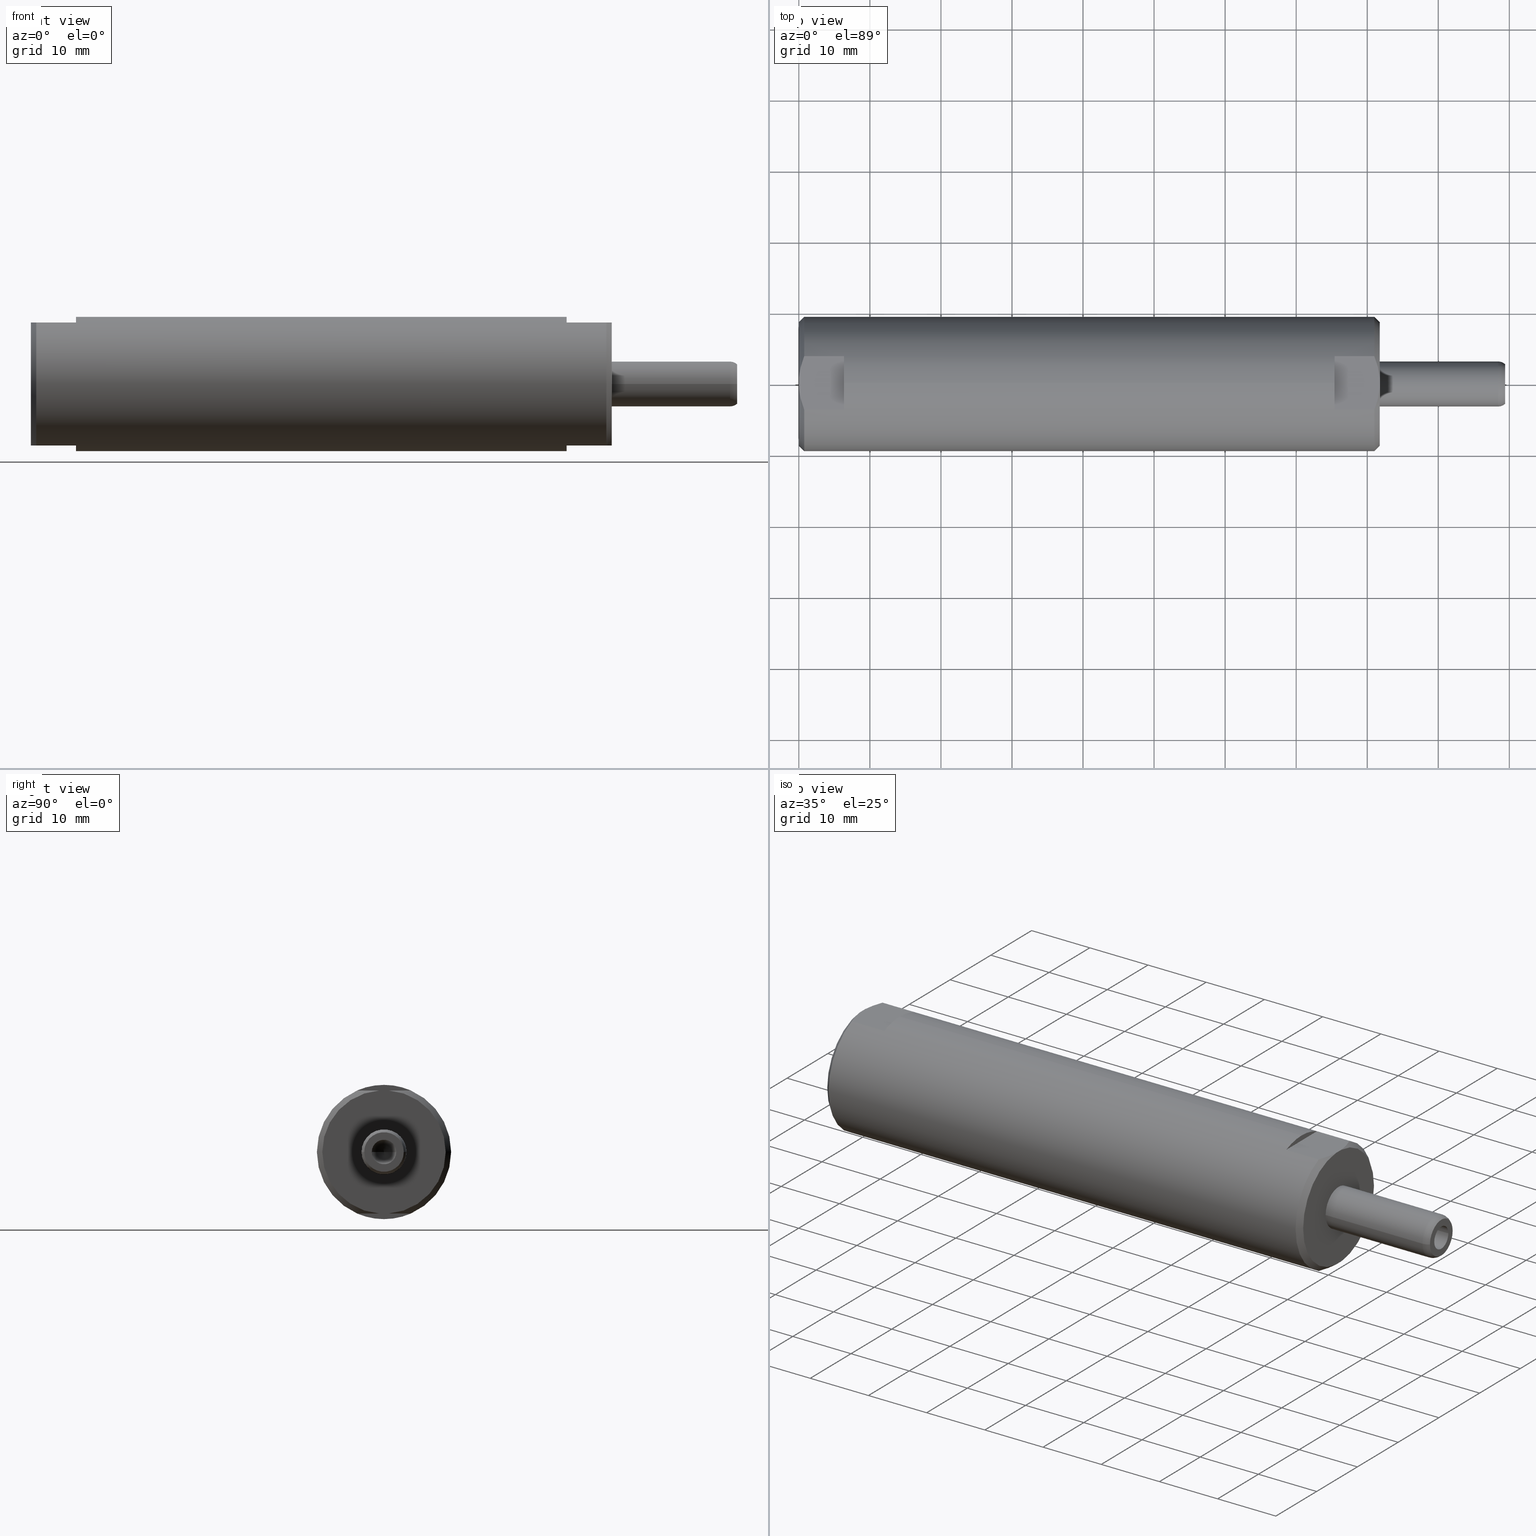
[diagram: canonical four-view strip — front | top / right | iso, engineering-drawing reading convention]
A machine part, canonical four-view strip (front | top / right | iso — engineering-drawing reading convention). The complete STEP part file that produces these views, byte-faithful:
ISO-10303-21;
HEADER;
FILE_DESCRIPTION((''),'2;1');
FILE_NAME('ILC20010512','2015-04-19T',('jdw'),(''),
'PRO/ENGINEER BY PARAMETRIC TECHNOLOGY CORPORATION, 2013320',
'PRO/ENGINEER BY PARAMETRIC TECHNOLOGY CORPORATION, 2013320','');
FILE_SCHEMA(('AUTOMOTIVE_DESIGN { 1 0 10303 214 1 1 1 1 }'));
ENDSEC;
DATA;
#115=CARTESIAN_POINT('',(0.E0,0.E0,0.E0));
#116=DIRECTION('',(-1.E0,0.E0,0.E0));
#117=DIRECTION('',(0.E0,1.E0,0.E0));
#118=AXIS2_PLACEMENT_3D('',#115,#116,#117);
#120=DRAUGHTING_PRE_DEFINED_CURVE_FONT('continuous');
#121=CURVE_STYLE('',#120,POSITIVE_LENGTH_MEASURE(2.E-2),#49);
#122=PRESENTATION_STYLE_ASSIGNMENT((#121));
#123=STYLED_ITEM('',(#122),#119);
#124=CARTESIAN_POINT('',(0.E0,0.E0,0.E0));
#125=DIRECTION('',(-1.E0,0.E0,0.E0));
#126=DIRECTION('',(0.E0,-1.E0,0.E0));
#127=AXIS2_PLACEMENT_3D('',#124,#125,#126);
#129=CURVE_STYLE('',#120,POSITIVE_LENGTH_MEASURE(2.E-2),#49);
#130=PRESENTATION_STYLE_ASSIGNMENT((#129));
#131=STYLED_ITEM('',(#130),#128);
#132=DIRECTION('',(0.E0,1.E0,0.E0));
#133=VECTOR('',#132,5.226853738148E-2);
#134=CARTESIAN_POINT('',(0.E0,-2.613426869074E-2,3.41E-1));
#135=LINE('',#134,#133);
#136=CURVE_STYLE('',#120,POSITIVE_LENGTH_MEASURE(2.E-2),#49);
#137=PRESENTATION_STYLE_ASSIGNMENT((#136));
#138=STYLED_ITEM('',(#137),#135);
#139=CARTESIAN_POINT('',(0.E0,0.E0,0.E0));
#140=DIRECTION('',(1.E0,0.E0,0.E0));
#141=DIRECTION('',(0.E0,-7.641599032381E-2,9.970760233918E-1));
#142=AXIS2_PLACEMENT_3D('',#139,#140,#141);
#144=CURVE_STYLE('',#120,POSITIVE_LENGTH_MEASURE(2.E-2),#49);
#145=PRESENTATION_STYLE_ASSIGNMENT((#144));
#146=STYLED_ITEM('',(#145),#143);
#147=DIRECTION('',(0.E0,1.E0,0.E0));
#148=VECTOR('',#147,5.226853738149E-2);
#149=CARTESIAN_POINT('',(0.E0,-2.613426869074E-2,-3.41E-1));
#150=LINE('',#149,#148);
#151=CURVE_STYLE('',#120,POSITIVE_LENGTH_MEASURE(2.E-2),#49);
#152=PRESENTATION_STYLE_ASSIGNMENT((#151));
#153=STYLED_ITEM('',(#152),#150);
#154=CARTESIAN_POINT('',(0.E0,0.E0,0.E0));
#155=DIRECTION('',(1.E0,0.E0,0.E0));
#156=DIRECTION('',(0.E0,7.641599032381E-2,-9.970760233918E-1));
#157=AXIS2_PLACEMENT_3D('',#154,#155,#156);
#159=CURVE_STYLE('',#120,POSITIVE_LENGTH_MEASURE(2.E-2),#49);
#160=PRESENTATION_STYLE_ASSIGNMENT((#159));
#161=STYLED_ITEM('',(#160),#158);
#162=CARTESIAN_POINT('',(1.005E-1,0.E0,0.E0));
#163=DIRECTION('',(-1.E0,0.E0,0.E0));
#164=DIRECTION('',(0.E0,1.E0,0.E0));
#165=AXIS2_PLACEMENT_3D('',#162,#163,#164);
#167=CURVE_STYLE('',#120,POSITIVE_LENGTH_MEASURE(2.E-2),#49);
#168=PRESENTATION_STYLE_ASSIGNMENT((#167));
#169=STYLED_ITEM('',(#168),#166);
#170=DIRECTION('',(-9.781476007338E-1,-2.079116908178E-1,0.E0));
#171=VECTOR('',#170,1.027452297839E-1);
#172=CARTESIAN_POINT('',(1.005E-1,-2.221380655522E-1,0.E0));
#173=LINE('',#172,#171);
#174=CURVE_STYLE('',#120,POSITIVE_LENGTH_MEASURE(2.E-2),#49);
#175=PRESENTATION_STYLE_ASSIGNMENT((#174));
#176=STYLED_ITEM('',(#175),#173);
#177=CARTESIAN_POINT('',(1.005E-1,0.E0,0.E0));
#178=DIRECTION('',(1.E0,0.E0,0.E0));
#179=DIRECTION('',(0.E0,1.E0,0.E0));
#180=AXIS2_PLACEMENT_3D('',#177,#178,#179);
#182=CURVE_STYLE('',#120,POSITIVE_LENGTH_MEASURE(2.E-2),#49);
#183=PRESENTATION_STYLE_ASSIGNMENT((#182));
#184=STYLED_ITEM('',(#183),#181);
#185=DIRECTION('',(-9.781476007338E-1,2.079116908178E-1,0.E0));
#186=VECTOR('',#185,1.027452297839E-1);
#187=CARTESIAN_POINT('',(1.005E-1,2.221380655522E-1,0.E0));
#188=LINE('',#187,#186);
#189=CURVE_STYLE('',#120,POSITIVE_LENGTH_MEASURE(2.E-2),#49);
#190=PRESENTATION_STYLE_ASSIGNMENT((#189));
#191=STYLED_ITEM('',(#190),#188);
#192=DIRECTION('',(-7.071067811865E-1,7.071067811865E-1,0.E0));
#193=VECTOR('',#192,3.696480679807E-2);
#194=CARTESIAN_POINT('',(1.266380655522E-1,1.96E-1,0.E0));
#195=LINE('',#194,#193);
#196=CURVE_STYLE('',#120,POSITIVE_LENGTH_MEASURE(2.E-2),#49);
#197=PRESENTATION_STYLE_ASSIGNMENT((#196));
#198=STYLED_ITEM('',(#197),#195);
#199=DIRECTION('',(-7.071067811865E-1,-7.071067811865E-1,0.E0));
#200=VECTOR('',#199,3.696480679807E-2);
#201=CARTESIAN_POINT('',(1.266380655522E-1,-1.96E-1,0.E0));
#202=LINE('',#201,#200);
#203=CURVE_STYLE('',#120,POSITIVE_LENGTH_MEASURE(2.E-2),#49);
#204=PRESENTATION_STYLE_ASSIGNMENT((#203));
#205=STYLED_ITEM('',(#204),#202);
#206=CARTESIAN_POINT('',(1.266380655522E-1,0.E0,0.E0));
#207=DIRECTION('',(1.E0,0.E0,0.E0));
#208=DIRECTION('',(0.E0,1.E0,0.E0));
#209=AXIS2_PLACEMENT_3D('',#206,#207,#208);
#211=CURVE_STYLE('',#120,POSITIVE_LENGTH_MEASURE(2.E-2),#49);
#212=PRESENTATION_STYLE_ASSIGNMENT((#211));
#213=STYLED_ITEM('',(#212),#210);
#214=CARTESIAN_POINT('',(1.266380655522E-1,0.E0,0.E0));
#215=DIRECTION('',(-1.E0,0.E0,0.E0));
#216=DIRECTION('',(0.E0,1.E0,0.E0));
#217=AXIS2_PLACEMENT_3D('',#214,#215,#216);
#219=CURVE_STYLE('',#120,POSITIVE_LENGTH_MEASURE(2.E-2),#49);
#220=PRESENTATION_STYLE_ASSIGNMENT((#219));
#221=STYLED_ITEM('',(#220),#218);
#222=CARTESIAN_POINT('',(5.5E-1,0.E0,0.E0));
#223=DIRECTION('',(-1.E0,0.E0,0.E0));
#224=DIRECTION('',(0.E0,1.E0,0.E0));
#225=AXIS2_PLACEMENT_3D('',#222,#223,#224);
#227=CURVE_STYLE('',#120,POSITIVE_LENGTH_MEASURE(2.E-2),#49);
#228=PRESENTATION_STYLE_ASSIGNMENT((#227));
#229=STYLED_ITEM('',(#228),#226);
#230=DIRECTION('',(-1.E0,0.E0,0.E0));
#231=VECTOR('',#230,4.233619344478E-1);
#232=CARTESIAN_POINT('',(5.5E-1,1.96E-1,0.E0));
#233=LINE('',#232,#231);
#234=CURVE_STYLE('',#120,POSITIVE_LENGTH_MEASURE(2.E-2),#49);
#235=PRESENTATION_STYLE_ASSIGNMENT((#234));
#236=STYLED_ITEM('',(#235),#233);
#237=DIRECTION('',(-1.E0,0.E0,0.E0));
#238=VECTOR('',#237,4.233619344478E-1);
#239=CARTESIAN_POINT('',(5.5E-1,-1.96E-1,0.E0));
#240=LINE('',#239,#238);
#241=CURVE_STYLE('',#120,POSITIVE_LENGTH_MEASURE(2.E-2),#49);
#242=PRESENTATION_STYLE_ASSIGNMENT((#241));
#243=STYLED_ITEM('',(#242),#240);
#244=CARTESIAN_POINT('',(5.5E-1,0.E0,0.E0));
#245=DIRECTION('',(1.E0,0.E0,0.E0));
#246=DIRECTION('',(0.E0,1.E0,0.E0));
#247=AXIS2_PLACEMENT_3D('',#244,#245,#246);
#249=CURVE_STYLE('',#120,POSITIVE_LENGTH_MEASURE(2.E-2),#49);
#250=PRESENTATION_STYLE_ASSIGNMENT((#249));
#251=STYLED_ITEM('',(#250),#248);
#252=CARTESIAN_POINT('',(3.E-2,1.486707772227E-1,3.41E-1));
#253=CARTESIAN_POINT('',(2.427521163559E-2,1.343463665258E-1,3.41E-1));
#254=CARTESIAN_POINT('',(1.442500705858E-2,1.061751476201E-1,3.41E-1));
#255=CARTESIAN_POINT('',(4.559062956570E-3,6.585273961284E-2,3.41E-1));
#256=CARTESIAN_POINT('',(1.003696272238E-3,3.926890540728E-2,3.41E-1));
#257=CARTESIAN_POINT('',(0.E0,2.613426869074E-2,3.41E-1));
#259=CURVE_STYLE('',#120,POSITIVE_LENGTH_MEASURE(2.E-2),#49);
#260=PRESENTATION_STYLE_ASSIGNMENT((#259));
#261=STYLED_ITEM('',(#260),#258);
#262=DIRECTION('',(1.E0,0.E0,0.E0));
#263=VECTOR('',#262,2.2E-1);
#264=CARTESIAN_POINT('',(3.E-2,1.486707772227E-1,3.41E-1));
#265=LINE('',#264,#263);
#266=CURVE_STYLE('',#120,POSITIVE_LENGTH_MEASURE(2.E-2),#49);
#267=PRESENTATION_STYLE_ASSIGNMENT((#266));
#268=STYLED_ITEM('',(#267),#265);
#269=DIRECTION('',(0.E0,-1.E0,0.E0));
#270=VECTOR('',#269,2.973415544454E-1);
#271=CARTESIAN_POINT('',(2.5E-1,1.486707772227E-1,3.41E-1));
#272=LINE('',#271,#270);
#273=CURVE_STYLE('',#120,POSITIVE_LENGTH_MEASURE(2.E-2),#49);
#274=PRESENTATION_STYLE_ASSIGNMENT((#273));
#275=STYLED_ITEM('',(#274),#272);
#276=DIRECTION('',(1.E0,0.E0,0.E0));
#277=VECTOR('',#276,2.2E-1);
#278=CARTESIAN_POINT('',(3.E-2,-1.486707772227E-1,3.41E-1));
#279=LINE('',#278,#277);
#280=CURVE_STYLE('',#120,POSITIVE_LENGTH_MEASURE(2.E-2),#49);
#281=PRESENTATION_STYLE_ASSIGNMENT((#280));
#282=STYLED_ITEM('',(#281),#279);
#283=CARTESIAN_POINT('',(0.E0,-2.613426869074E-2,3.41E-1));
#284=CARTESIAN_POINT('',(1.008417468084E-3,-3.933068823345E-2,3.41E-1));
#285=CARTESIAN_POINT('',(4.583081938821E-3,-6.599617569636E-2,3.41E-1));
#286=CARTESIAN_POINT('',(1.448157356460E-2,-1.063578946399E-1,3.41E-1));
#287=CARTESIAN_POINT('',(2.430565910798E-2,-1.344225513682E-1,3.41E-1));
#288=CARTESIAN_POINT('',(3.E-2,-1.486707772227E-1,3.41E-1));
#290=CURVE_STYLE('',#120,POSITIVE_LENGTH_MEASURE(2.E-2),#49);
#291=PRESENTATION_STYLE_ASSIGNMENT((#290));
#292=STYLED_ITEM('',(#291),#289);
#293=CARTESIAN_POINT('',(3.E-2,0.E0,0.E0));
#294=DIRECTION('',(1.E0,0.E0,0.E0));
#295=DIRECTION('',(0.E0,3.996526269427E-1,-9.166666666667E-1));
#296=AXIS2_PLACEMENT_3D('',#293,#294,#295);
#298=CURVE_STYLE('',#120,POSITIVE_LENGTH_MEASURE(2.E-2),#49);
#299=PRESENTATION_STYLE_ASSIGNMENT((#298));
#300=STYLED_ITEM('',(#299),#297);
#301=CARTESIAN_POINT('',(3.E-2,-1.486707772227E-1,-3.41E-1));
#302=CARTESIAN_POINT('',(2.427521163559E-2,-1.343463665258E-1,-3.41E-1));
#303=CARTESIAN_POINT('',(1.442500705858E-2,-1.061751476201E-1,-3.41E-1));
#304=CARTESIAN_POINT('',(4.559062956571E-3,-6.585273961284E-2,-3.41E-1));
#305=CARTESIAN_POINT('',(1.003696272238E-3,-3.926890540728E-2,-3.41E-1));
#306=CARTESIAN_POINT('',(0.E0,-2.613426869074E-2,-3.41E-1));
#308=CURVE_STYLE('',#120,POSITIVE_LENGTH_MEASURE(2.E-2),#49);
#309=PRESENTATION_STYLE_ASSIGNMENT((#308));
#310=STYLED_ITEM('',(#309),#307);
#311=DIRECTION('',(1.E0,0.E0,0.E0));
#312=VECTOR('',#311,2.2E-1);
#313=CARTESIAN_POINT('',(3.E-2,-1.486707772227E-1,-3.41E-1));
#314=LINE('',#313,#312);
#315=CURVE_STYLE('',#120,POSITIVE_LENGTH_MEASURE(2.E-2),#49);
#316=PRESENTATION_STYLE_ASSIGNMENT((#315));
#317=STYLED_ITEM('',(#316),#314);
#318=DIRECTION('',(1.E0,0.E0,0.E0));
#319=VECTOR('',#318,2.2E-1);
#320=CARTESIAN_POINT('',(3.E-2,1.486707772227E-1,-3.41E-1));
#321=LINE('',#320,#319);
#322=CURVE_STYLE('',#120,POSITIVE_LENGTH_MEASURE(2.E-2),#49);
#323=PRESENTATION_STYLE_ASSIGNMENT((#322));
#324=STYLED_ITEM('',(#323),#321);
#325=CARTESIAN_POINT('',(0.E0,2.613426869074E-2,-3.41E-1));
#326=CARTESIAN_POINT('',(1.008417468084E-3,3.933068823345E-2,-3.41E-1));
#327=CARTESIAN_POINT('',(4.583081938821E-3,6.599617569636E-2,-3.41E-1));
#328=CARTESIAN_POINT('',(1.448157356460E-2,1.063578946399E-1,-3.41E-1));
#329=CARTESIAN_POINT('',(2.430565910798E-2,1.344225513682E-1,-3.41E-1));
#330=CARTESIAN_POINT('',(3.E-2,1.486707772227E-1,-3.41E-1));
#332=CURVE_STYLE('',#120,POSITIVE_LENGTH_MEASURE(2.E-2),#49);
#333=PRESENTATION_STYLE_ASSIGNMENT((#332));
#334=STYLED_ITEM('',(#333),#331);
#335=CARTESIAN_POINT('',(3.E-2,0.E0,0.E0));
#336=DIRECTION('',(1.E0,0.E0,0.E0));
#337=DIRECTION('',(0.E0,-3.996526269427E-1,9.166666666667E-1));
#338=AXIS2_PLACEMENT_3D('',#335,#336,#337);
#340=CURVE_STYLE('',#120,POSITIVE_LENGTH_MEASURE(2.E-2),#49);
#341=PRESENTATION_STYLE_ASSIGNMENT((#340));
#342=STYLED_ITEM('',(#341),#339);
#343=DIRECTION('',(1.E0,0.E0,0.E0));
#344=VECTOR('',#343,2.2E-1);
#345=CARTESIAN_POINT('',(2.969E0,-1.486707772227E-1,3.41E-1));
#346=LINE('',#345,#344);
#347=CURVE_STYLE('',#120,POSITIVE_LENGTH_MEASURE(2.E-2),#49);
#348=PRESENTATION_STYLE_ASSIGNMENT((#347));
#349=STYLED_ITEM('',(#348),#346);
#350=DIRECTION('',(1.E0,0.E0,0.E0));
#351=VECTOR('',#350,2.2E-1);
#352=CARTESIAN_POINT('',(2.969E0,-1.486707772227E-1,-3.41E-1));
#353=LINE('',#352,#351);
#354=CURVE_STYLE('',#120,POSITIVE_LENGTH_MEASURE(2.E-2),#49);
#355=PRESENTATION_STYLE_ASSIGNMENT((#354));
#356=STYLED_ITEM('',(#355),#353);
#357=CARTESIAN_POINT('',(2.969E0,0.E0,0.E0));
#358=DIRECTION('',(1.E0,0.E0,0.E0));
#359=DIRECTION('',(0.E0,-3.996526269427E-1,-9.166666666667E-1));
#360=AXIS2_PLACEMENT_3D('',#357,#358,#359);
#362=CURVE_STYLE('',#120,POSITIVE_LENGTH_MEASURE(2.E-2),#49);
#363=PRESENTATION_STYLE_ASSIGNMENT((#362));
#364=STYLED_ITEM('',(#363),#361);
#365=DIRECTION('',(1.E0,0.E0,0.E0));
#366=VECTOR('',#365,2.719E0);
#367=CARTESIAN_POINT('',(2.5E-1,0.E0,3.72E-1));
#368=LINE('',#367,#366);
#369=CURVE_STYLE('',#120,POSITIVE_LENGTH_MEASURE(2.E-2),#49);
#370=PRESENTATION_STYLE_ASSIGNMENT((#369));
#371=STYLED_ITEM('',(#370),#368);
#372=CARTESIAN_POINT('',(2.969E0,0.E0,0.E0));
#373=DIRECTION('',(1.E0,0.E0,0.E0));
#374=DIRECTION('',(0.E0,0.E0,1.E0));
#375=AXIS2_PLACEMENT_3D('',#372,#373,#374);
#377=CURVE_STYLE('',#120,POSITIVE_LENGTH_MEASURE(2.E-2),#49);
#378=PRESENTATION_STYLE_ASSIGNMENT((#377));
#379=STYLED_ITEM('',(#378),#376);
#380=DIRECTION('',(1.E0,0.E0,0.E0));
#381=VECTOR('',#380,2.2E-1);
#382=CARTESIAN_POINT('',(2.969E0,1.486707772227E-1,3.41E-1));
#383=LINE('',#382,#381);
#384=CURVE_STYLE('',#120,POSITIVE_LENGTH_MEASURE(2.E-2),#49);
#385=PRESENTATION_STYLE_ASSIGNMENT((#384));
#386=STYLED_ITEM('',(#385),#383);
#387=CARTESIAN_POINT('',(2.969E0,0.E0,0.E0));
#388=DIRECTION('',(1.E0,0.E0,0.E0));
#389=DIRECTION('',(0.E0,3.996526269427E-1,9.166666666667E-1));
#390=AXIS2_PLACEMENT_3D('',#387,#388,#389);
#392=CURVE_STYLE('',#120,POSITIVE_LENGTH_MEASURE(2.E-2),#49);
#393=PRESENTATION_STYLE_ASSIGNMENT((#392));
#394=STYLED_ITEM('',(#393),#391);
#395=DIRECTION('',(1.E0,0.E0,0.E0));
#396=VECTOR('',#395,2.719E0);
#397=CARTESIAN_POINT('',(2.5E-1,0.E0,-3.72E-1));
#398=LINE('',#397,#396);
#399=CURVE_STYLE('',#120,POSITIVE_LENGTH_MEASURE(2.E-2),#49);
#400=PRESENTATION_STYLE_ASSIGNMENT((#399));
#401=STYLED_ITEM('',(#400),#398);
#402=CARTESIAN_POINT('',(2.969E0,0.E0,0.E0));
#403=DIRECTION('',(1.E0,0.E0,0.E0));
#404=DIRECTION('',(0.E0,0.E0,-1.E0));
#405=AXIS2_PLACEMENT_3D('',#402,#403,#404);
#407=CURVE_STYLE('',#120,POSITIVE_LENGTH_MEASURE(2.E-2),#49);
#408=PRESENTATION_STYLE_ASSIGNMENT((#407));
#409=STYLED_ITEM('',(#408),#406);
#410=DIRECTION('',(1.E0,0.E0,0.E0));
#411=VECTOR('',#410,2.2E-1);
#412=CARTESIAN_POINT('',(2.969E0,1.486707772227E-1,-3.41E-1));
#413=LINE('',#412,#411);
#414=CURVE_STYLE('',#120,POSITIVE_LENGTH_MEASURE(2.E-2),#49);
#415=PRESENTATION_STYLE_ASSIGNMENT((#414));
#416=STYLED_ITEM('',(#415),#413);
#417=DIRECTION('',(0.E0,-1.E0,0.E0));
#418=VECTOR('',#417,2.973415544454E-1);
#419=CARTESIAN_POINT('',(2.969E0,1.486707772227E-1,3.41E-1));
#420=LINE('',#419,#418);
#421=CURVE_STYLE('',#120,POSITIVE_LENGTH_MEASURE(2.E-2),#49);
#422=PRESENTATION_STYLE_ASSIGNMENT((#421));
#423=STYLED_ITEM('',(#422),#420);
#424=CARTESIAN_POINT('',(2.5E-1,0.E0,0.E0));
#425=DIRECTION('',(1.E0,0.E0,0.E0));
#426=DIRECTION('',(0.E0,3.996526269427E-1,9.166666666667E-1));
#427=AXIS2_PLACEMENT_3D('',#424,#425,#426);
#429=CURVE_STYLE('',#120,POSITIVE_LENGTH_MEASURE(2.E-2),#49);
#430=PRESENTATION_STYLE_ASSIGNMENT((#429));
#431=STYLED_ITEM('',(#430),#428);
#432=CARTESIAN_POINT('',(2.5E-1,0.E0,0.E0));
#433=DIRECTION('',(1.E0,0.E0,0.E0));
#434=DIRECTION('',(0.E0,0.E0,1.E0));
#435=AXIS2_PLACEMENT_3D('',#432,#433,#434);
#437=CURVE_STYLE('',#120,POSITIVE_LENGTH_MEASURE(2.E-2),#49);
#438=PRESENTATION_STYLE_ASSIGNMENT((#437));
#439=STYLED_ITEM('',(#438),#436);
#440=CARTESIAN_POINT('',(2.5E-1,0.E0,0.E0));
#441=DIRECTION('',(1.E0,0.E0,0.E0));
#442=DIRECTION('',(0.E0,0.E0,-1.E0));
#443=AXIS2_PLACEMENT_3D('',#440,#441,#442);
#445=CURVE_STYLE('',#120,POSITIVE_LENGTH_MEASURE(2.E-2),#49);
#446=PRESENTATION_STYLE_ASSIGNMENT((#445));
#447=STYLED_ITEM('',(#446),#444);
#448=DIRECTION('',(0.E0,-1.E0,0.E0));
#449=VECTOR('',#448,2.973415544454E-1);
#450=CARTESIAN_POINT('',(2.5E-1,1.486707772227E-1,-3.41E-1));
#451=LINE('',#450,#449);
#452=CURVE_STYLE('',#120,POSITIVE_LENGTH_MEASURE(2.E-2),#49);
#453=PRESENTATION_STYLE_ASSIGNMENT((#452));
#454=STYLED_ITEM('',(#453),#451);
#455=CARTESIAN_POINT('',(2.5E-1,0.E0,0.E0));
#456=DIRECTION('',(1.E0,0.E0,0.E0));
#457=DIRECTION('',(0.E0,-3.996526269427E-1,-9.166666666667E-1));
#458=AXIS2_PLACEMENT_3D('',#455,#456,#457);
#460=CURVE_STYLE('',#120,POSITIVE_LENGTH_MEASURE(2.E-2),#49);
#461=PRESENTATION_STYLE_ASSIGNMENT((#460));
#462=STYLED_ITEM('',(#461),#459);
#463=DIRECTION('',(0.E0,-1.E0,0.E0));
#464=VECTOR('',#463,2.973415544454E-1);
#465=CARTESIAN_POINT('',(2.969E0,1.486707772227E-1,-3.41E-1));
#466=LINE('',#465,#464);
#467=CURVE_STYLE('',#120,POSITIVE_LENGTH_MEASURE(2.E-2),#49);
#468=PRESENTATION_STYLE_ASSIGNMENT((#467));
#469=STYLED_ITEM('',(#468),#466);
#470=CARTESIAN_POINT('',(3.219E0,0.E0,0.E0));
#471=DIRECTION('',(1.E0,0.E0,0.E0));
#472=DIRECTION('',(0.E0,7.641599032380E-2,-9.970760233918E-1));
#473=AXIS2_PLACEMENT_3D('',#470,#471,#472);
#475=CURVE_STYLE('',#120,POSITIVE_LENGTH_MEASURE(2.E-2),#49);
#476=PRESENTATION_STYLE_ASSIGNMENT((#475));
#477=STYLED_ITEM('',(#476),#474);
#478=CARTESIAN_POINT('',(3.189E0,1.486707772227E-1,3.41E-1));
#479=CARTESIAN_POINT('',(3.194724788364E0,1.343463665258E-1,3.41E-1));
#480=CARTESIAN_POINT('',(3.204574992941E0,1.061751476201E-1,3.41E-1));
#481=CARTESIAN_POINT('',(3.214440937043E0,6.585273961284E-2,3.41E-1));
#482=CARTESIAN_POINT('',(3.217996303728E0,3.926890540728E-2,3.41E-1));
#483=CARTESIAN_POINT('',(3.219E0,2.613426869074E-2,3.41E-1));
#485=CURVE_STYLE('',#120,POSITIVE_LENGTH_MEASURE(2.E-2),#49);
#486=PRESENTATION_STYLE_ASSIGNMENT((#485));
#487=STYLED_ITEM('',(#486),#484);
#488=CARTESIAN_POINT('',(3.189E0,0.E0,0.E0));
#489=DIRECTION('',(-1.E0,0.E0,0.E0));
#490=DIRECTION('',(0.E0,3.996526269427E-1,9.166666666667E-1));
#491=AXIS2_PLACEMENT_3D('',#488,#489,#490);
#493=CURVE_STYLE('',#120,POSITIVE_LENGTH_MEASURE(2.E-2),#49);
#494=PRESENTATION_STYLE_ASSIGNMENT((#493));
#495=STYLED_ITEM('',(#494),#492);
#496=CARTESIAN_POINT('',(3.219E0,2.613426869074E-2,-3.41E-1));
#497=CARTESIAN_POINT('',(3.217991582532E0,3.933068823345E-2,-3.41E-1));
#498=CARTESIAN_POINT('',(3.214416918061E0,6.599617569636E-2,-3.41E-1));
#499=CARTESIAN_POINT('',(3.204518426435E0,1.063578946399E-1,-3.41E-1));
#500=CARTESIAN_POINT('',(3.194694340892E0,1.344225513682E-1,-3.41E-1));
#501=CARTESIAN_POINT('',(3.189E0,1.486707772227E-1,-3.41E-1));
#503=CURVE_STYLE('',#120,POSITIVE_LENGTH_MEASURE(2.E-2),#49);
#504=PRESENTATION_STYLE_ASSIGNMENT((#503));
#505=STYLED_ITEM('',(#504),#502);
#506=CARTESIAN_POINT('',(3.189E0,0.E0,0.E0));
#507=DIRECTION('',(-1.E0,0.E0,0.E0));
#508=DIRECTION('',(0.E0,-3.996526269427E-1,-9.166666666667E-1));
#509=AXIS2_PLACEMENT_3D('',#506,#507,#508);
#511=CURVE_STYLE('',#120,POSITIVE_LENGTH_MEASURE(2.E-2),#49);
#512=PRESENTATION_STYLE_ASSIGNMENT((#511));
#513=STYLED_ITEM('',(#512),#510);
#514=CARTESIAN_POINT('',(3.219E0,-2.613426869074E-2,3.41E-1));
#515=CARTESIAN_POINT('',(3.217991582532E0,-3.933068823345E-2,3.41E-1));
#516=CARTESIAN_POINT('',(3.214416918061E0,-6.599617569636E-2,3.41E-1));
#517=CARTESIAN_POINT('',(3.204518426435E0,-1.063578946399E-1,3.41E-1));
#518=CARTESIAN_POINT('',(3.194694340892E0,-1.344225513682E-1,3.41E-1));
#519=CARTESIAN_POINT('',(3.189E0,-1.486707772227E-1,3.41E-1));
#521=CURVE_STYLE('',#120,POSITIVE_LENGTH_MEASURE(2.E-2),#49);
#522=PRESENTATION_STYLE_ASSIGNMENT((#521));
#523=STYLED_ITEM('',(#522),#520);
#524=CARTESIAN_POINT('',(3.219E0,0.E0,0.E0));
#525=DIRECTION('',(1.E0,0.E0,0.E0));
#526=DIRECTION('',(0.E0,-7.641599032380E-2,9.970760233918E-1));
#527=AXIS2_PLACEMENT_3D('',#524,#525,#526);
#529=CURVE_STYLE('',#120,POSITIVE_LENGTH_MEASURE(2.E-2),#49);
#530=PRESENTATION_STYLE_ASSIGNMENT((#529));
#531=STYLED_ITEM('',(#530),#528);
#532=CARTESIAN_POINT('',(3.189E0,-1.486707772227E-1,-3.41E-1));
#533=CARTESIAN_POINT('',(3.194724788364E0,-1.343463665258E-1,-3.41E-1));
#534=CARTESIAN_POINT('',(3.204574992941E0,-1.061751476201E-1,-3.41E-1));
#535=CARTESIAN_POINT('',(3.214440937043E0,-6.585273961284E-2,-3.41E-1));
#536=CARTESIAN_POINT('',(3.217996303728E0,-3.926890540728E-2,-3.41E-1));
#537=CARTESIAN_POINT('',(3.219E0,-2.613426869074E-2,-3.41E-1));
#539=CURVE_STYLE('',#120,POSITIVE_LENGTH_MEASURE(2.E-2),#49);
#540=PRESENTATION_STYLE_ASSIGNMENT((#539));
#541=STYLED_ITEM('',(#540),#538);
#542=CARTESIAN_POINT('',(3.219E0,0.E0,0.E0));
#543=DIRECTION('',(1.E0,0.E0,0.E0));
#544=DIRECTION('',(0.E0,1.E0,0.E0));
#545=AXIS2_PLACEMENT_3D('',#542,#543,#544);
#547=CURVE_STYLE('',#120,POSITIVE_LENGTH_MEASURE(2.E-2),#49);
#548=PRESENTATION_STYLE_ASSIGNMENT((#547));
#549=STYLED_ITEM('',(#548),#546);
#550=CARTESIAN_POINT('',(3.219E0,0.E0,0.E0));
#551=DIRECTION('',(1.E0,0.E0,0.E0));
#552=DIRECTION('',(0.E0,-1.E0,0.E0));
#553=AXIS2_PLACEMENT_3D('',#550,#551,#552);
#555=CURVE_STYLE('',#120,POSITIVE_LENGTH_MEASURE(2.E-2),#49);
#556=PRESENTATION_STYLE_ASSIGNMENT((#555));
#557=STYLED_ITEM('',(#556),#554);
#558=DIRECTION('',(0.E0,1.E0,0.E0));
#559=VECTOR('',#558,5.226853738148E-2);
#560=CARTESIAN_POINT('',(3.219E0,-2.613426869074E-2,3.41E-1));
#561=LINE('',#560,#559);
#562=CURVE_STYLE('',#120,POSITIVE_LENGTH_MEASURE(2.E-2),#49);
#563=PRESENTATION_STYLE_ASSIGNMENT((#562));
#564=STYLED_ITEM('',(#563),#561);
#565=DIRECTION('',(0.E0,1.E0,0.E0));
#566=VECTOR('',#565,5.226853738148E-2);
#567=CARTESIAN_POINT('',(3.219E0,-2.613426869074E-2,-3.41E-1));
#568=LINE('',#567,#566);
#569=CURVE_STYLE('',#120,POSITIVE_LENGTH_MEASURE(2.E-2),#49);
#570=PRESENTATION_STYLE_ASSIGNMENT((#569));
#571=STYLED_ITEM('',(#570),#568);
#572=CARTESIAN_POINT('',(3.874E0,-6.5E-2,0.E0));
#573=DIRECTION('',(0.E0,0.E0,1.E0));
#574=DIRECTION('',(0.E0,-1.E0,0.E0));
#575=AXIS2_PLACEMENT_3D('',#572,#573,#574);
#577=CURVE_STYLE('',#120,POSITIVE_LENGTH_MEASURE(2.E-2),#49);
#578=PRESENTATION_STYLE_ASSIGNMENT((#577));
#579=STYLED_ITEM('',(#578),#576);
#580=CARTESIAN_POINT('',(3.874E0,0.E0,0.E0));
#581=DIRECTION('',(1.E0,0.E0,0.E0));
#582=DIRECTION('',(0.E0,1.E0,0.E0));
#583=AXIS2_PLACEMENT_3D('',#580,#581,#582);
#585=CURVE_STYLE('',#120,POSITIVE_LENGTH_MEASURE(2.E-2),#49);
#586=PRESENTATION_STYLE_ASSIGNMENT((#585));
#587=STYLED_ITEM('',(#586),#584);
#588=CARTESIAN_POINT('',(3.874E0,6.5E-2,0.E0));
#589=DIRECTION('',(0.E0,0.E0,-1.E0));
#590=DIRECTION('',(0.E0,1.E0,0.E0));
#591=AXIS2_PLACEMENT_3D('',#588,#589,#590);
#593=CURVE_STYLE('',#120,POSITIVE_LENGTH_MEASURE(2.E-2),#49);
#594=PRESENTATION_STYLE_ASSIGNMENT((#593));
#595=STYLED_ITEM('',(#594),#592);
#596=CARTESIAN_POINT('',(3.914E0,0.E0,0.E0));
#597=DIRECTION('',(-1.E0,0.E0,0.E0));
#598=DIRECTION('',(0.E0,1.E0,0.E0));
#599=AXIS2_PLACEMENT_3D('',#596,#597,#598);
#601=CURVE_STYLE('',#120,POSITIVE_LENGTH_MEASURE(2.E-2),#49);
#602=PRESENTATION_STYLE_ASSIGNMENT((#601));
#603=STYLED_ITEM('',(#602),#600);
#604=CARTESIAN_POINT('',(3.914E0,0.E0,0.E0));
#605=DIRECTION('',(-1.E0,0.E0,0.E0));
#606=DIRECTION('',(0.E0,-1.E0,0.E0));
#607=AXIS2_PLACEMENT_3D('',#604,#605,#606);
#609=CURVE_STYLE('',#120,POSITIVE_LENGTH_MEASURE(2.E-2),#49);
#610=PRESENTATION_STYLE_ASSIGNMENT((#609));
#611=STYLED_ITEM('',(#610),#608);
#612=CARTESIAN_POINT('',(3.914E0,0.E0,0.E0));
#613=DIRECTION('',(1.E0,0.E0,0.E0));
#614=DIRECTION('',(0.E0,-1.E0,0.E0));
#615=AXIS2_PLACEMENT_3D('',#612,#613,#614);
#617=CURVE_STYLE('',#120,POSITIVE_LENGTH_MEASURE(2.E-2),#49);
#618=PRESENTATION_STYLE_ASSIGNMENT((#617));
#619=STYLED_ITEM('',(#618),#616);
#620=CARTESIAN_POINT('',(3.914E0,0.E0,0.E0));
#621=DIRECTION('',(1.E0,0.E0,0.E0));
#622=DIRECTION('',(0.E0,1.E0,0.E0));
#623=AXIS2_PLACEMENT_3D('',#620,#621,#622);
#625=CURVE_STYLE('',#120,POSITIVE_LENGTH_MEASURE(2.E-2),#49);
#626=PRESENTATION_STYLE_ASSIGNMENT((#625));
#627=STYLED_ITEM('',(#626),#624);
#628=CARTESIAN_POINT('',(3.874E0,0.E0,0.E0));
#629=DIRECTION('',(1.E0,0.E0,0.E0));
#630=DIRECTION('',(0.E0,-1.E0,0.E0));
#631=AXIS2_PLACEMENT_3D('',#628,#629,#630);
#633=CURVE_STYLE('',#120,POSITIVE_LENGTH_MEASURE(2.E-2),#49);
#634=PRESENTATION_STYLE_ASSIGNMENT((#633));
#635=STYLED_ITEM('',(#634),#632);
#636=DIRECTION('',(-1.E0,0.E0,0.E0));
#637=VECTOR('',#636,6.55E-1);
#638=CARTESIAN_POINT('',(3.874E0,1.25E-1,0.E0));
#639=LINE('',#638,#637);
#640=CURVE_STYLE('',#120,POSITIVE_LENGTH_MEASURE(2.E-2),#49);
#641=PRESENTATION_STYLE_ASSIGNMENT((#640));
#642=STYLED_ITEM('',(#641),#639);
#643=DIRECTION('',(-1.E0,0.E0,0.E0));
#644=VECTOR('',#643,6.55E-1);
#645=CARTESIAN_POINT('',(3.874E0,-1.25E-1,0.E0));
#646=LINE('',#645,#644);
#647=CURVE_STYLE('',#120,POSITIVE_LENGTH_MEASURE(2.E-2),#49);
#648=PRESENTATION_STYLE_ASSIGNMENT((#647));
#649=STYLED_ITEM('',(#648),#646);
#650=CARTESIAN_POINT('',(3.704858522094E0,0.E0,0.E0));
#651=DIRECTION('',(1.E0,0.E0,0.E0));
#652=DIRECTION('',(0.E0,-1.E0,0.E0));
#653=AXIS2_PLACEMENT_3D('',#650,#651,#652);
#655=CURVE_STYLE('',#120,POSITIVE_LENGTH_MEASURE(2.E-2),#49);
#656=PRESENTATION_STYLE_ASSIGNMENT((#655));
#657=STYLED_ITEM('',(#656),#654);
#658=DIRECTION('',(1.E0,0.E0,0.E0));
#659=VECTOR('',#658,2.091414779061E-1);
#660=CARTESIAN_POINT('',(3.704858522094E0,6.8E-2,0.E0));
#661=LINE('',#660,#659);
#662=CURVE_STYLE('',#120,POSITIVE_LENGTH_MEASURE(2.E-2),#49);
#663=PRESENTATION_STYLE_ASSIGNMENT((#662));
#664=STYLED_ITEM('',(#663),#661);
#665=CARTESIAN_POINT('',(3.704858522094E0,0.E0,0.E0));
#666=DIRECTION('',(-1.E0,0.E0,0.E0));
#667=DIRECTION('',(0.E0,-1.E0,0.E0));
#668=AXIS2_PLACEMENT_3D('',#665,#666,#667);
#670=CURVE_STYLE('',#120,POSITIVE_LENGTH_MEASURE(2.E-2),#49);
#671=PRESENTATION_STYLE_ASSIGNMENT((#670));
#672=STYLED_ITEM('',(#671),#669);
#673=DIRECTION('',(1.E0,0.E0,0.E0));
#674=VECTOR('',#673,2.091414779061E-1);
#675=CARTESIAN_POINT('',(3.704858522094E0,-6.8E-2,0.E0));
#676=LINE('',#675,#674);
#677=CURVE_STYLE('',#120,POSITIVE_LENGTH_MEASURE(2.E-2),#49);
#678=PRESENTATION_STYLE_ASSIGNMENT((#677));
#679=STYLED_ITEM('',(#678),#676);
#680=DIRECTION('',(5.150380749100E-1,-8.571673007021E-1,0.E0));
#681=VECTOR('',#680,7.933107101064E-2);
#682=CARTESIAN_POINT('',(3.664E0,0.E0,0.E0));
#683=LINE('',#682,#681);
#684=CURVE_STYLE('',#120,POSITIVE_LENGTH_MEASURE(2.E-2),#49);
#685=PRESENTATION_STYLE_ASSIGNMENT((#684));
#686=STYLED_ITEM('',(#685),#683);
#687=DIRECTION('',(5.150380749100E-1,8.571673007021E-1,0.E0));
#688=VECTOR('',#687,7.933107101064E-2);
#689=CARTESIAN_POINT('',(3.664E0,0.E0,0.E0));
#690=LINE('',#689,#688);
#691=CURVE_STYLE('',#120,POSITIVE_LENGTH_MEASURE(2.E-2),#49);
#692=PRESENTATION_STYLE_ASSIGNMENT((#691));
#693=STYLED_ITEM('',(#692),#690);
#694=CARTESIAN_POINT('',(5.5E-1,1.96E-1,0.E0));
#695=CARTESIAN_POINT('',(1.266380655522E-1,1.96E-1,0.E0));
#696=VERTEX_POINT('',#694);
#697=VERTEX_POINT('',#695);
#698=CARTESIAN_POINT('',(1.005E-1,2.221380655522E-1,0.E0));
#699=VERTEX_POINT('',#698);
#700=CARTESIAN_POINT('',(5.5E-1,-1.96E-1,0.E0));
#701=CARTESIAN_POINT('',(1.266380655522E-1,-1.96E-1,0.E0));
#702=VERTEX_POINT('',#700);
#703=VERTEX_POINT('',#701);
#704=CARTESIAN_POINT('',(1.005E-1,-2.221380655522E-1,0.E0));
#705=VERTEX_POINT('',#704);
#706=CARTESIAN_POINT('',(0.E0,2.435E-1,0.E0));
#707=CARTESIAN_POINT('',(0.E0,-2.435E-1,0.E0));
#708=VERTEX_POINT('',#706);
#709=VERTEX_POINT('',#707);
#710=CARTESIAN_POINT('',(0.E0,-2.613426869074E-2,3.41E-1));
#711=CARTESIAN_POINT('',(0.E0,2.613426869074E-2,3.41E-1));
#712=VERTEX_POINT('',#710);
#713=VERTEX_POINT('',#711);
#714=CARTESIAN_POINT('',(0.E0,-2.613426869074E-2,-3.41E-1));
#715=CARTESIAN_POINT('',(0.E0,2.613426869074E-2,-3.41E-1));
#716=VERTEX_POINT('',#714);
#717=VERTEX_POINT('',#715);
#718=CARTESIAN_POINT('',(2.5E-1,1.486707772227E-1,3.41E-1));
#719=CARTESIAN_POINT('',(2.5E-1,0.E0,3.72E-1));
#720=VERTEX_POINT('',#718);
#721=VERTEX_POINT('',#719);
#722=CARTESIAN_POINT('',(3.E-2,1.486707772227E-1,3.41E-1));
#723=VERTEX_POINT('',#722);
#724=CARTESIAN_POINT('',(2.5E-1,0.E0,-3.72E-1));
#725=CARTESIAN_POINT('',(2.5E-1,1.486707772227E-1,-3.41E-1));
#726=VERTEX_POINT('',#724);
#727=VERTEX_POINT('',#725);
#728=CARTESIAN_POINT('',(3.E-2,1.486707772227E-1,-3.41E-1));
#729=VERTEX_POINT('',#728);
#730=CARTESIAN_POINT('',(2.5E-1,-1.486707772227E-1,3.41E-1));
#731=VERTEX_POINT('',#730);
#732=CARTESIAN_POINT('',(3.E-2,-1.486707772227E-1,3.41E-1));
#733=VERTEX_POINT('',#732);
#734=CARTESIAN_POINT('',(2.5E-1,-1.486707772227E-1,-3.41E-1));
#735=VERTEX_POINT('',#734);
#736=CARTESIAN_POINT('',(3.E-2,-1.486707772227E-1,-3.41E-1));
#737=VERTEX_POINT('',#736);
#738=CARTESIAN_POINT('',(3.219E0,1.25E-1,0.E0));
#739=CARTESIAN_POINT('',(3.219E0,-1.25E-1,0.E0));
#740=VERTEX_POINT('',#738);
#741=VERTEX_POINT('',#739);
#742=CARTESIAN_POINT('',(3.914E0,1.097213595500E-1,0.E0));
#743=CARTESIAN_POINT('',(3.914E0,-1.097213595500E-1,0.E0));
#744=VERTEX_POINT('',#742);
#745=VERTEX_POINT('',#743);
#746=CARTESIAN_POINT('',(3.874E0,1.25E-1,0.E0));
#747=CARTESIAN_POINT('',(3.874E0,-1.25E-1,0.E0));
#748=VERTEX_POINT('',#746);
#749=VERTEX_POINT('',#747);
#750=CARTESIAN_POINT('',(3.664E0,0.E0,0.E0));
#751=CARTESIAN_POINT('',(3.704858522094E0,-6.8E-2,0.E0));
#752=VERTEX_POINT('',#750);
#753=VERTEX_POINT('',#751);
#754=CARTESIAN_POINT('',(3.704858522094E0,6.8E-2,0.E0));
#755=VERTEX_POINT('',#754);
#756=CARTESIAN_POINT('',(3.914E0,-6.8E-2,0.E0));
#757=CARTESIAN_POINT('',(3.914E0,6.8E-2,0.E0));
#758=VERTEX_POINT('',#756);
#759=VERTEX_POINT('',#757);
#760=CARTESIAN_POINT('',(2.969E0,1.486707772227E-1,3.41E-1));
#761=CARTESIAN_POINT('',(3.189E0,1.486707772227E-1,3.41E-1));
#762=VERTEX_POINT('',#760);
#763=VERTEX_POINT('',#761);
#764=CARTESIAN_POINT('',(2.969E0,-1.486707772227E-1,3.41E-1));
#765=CARTESIAN_POINT('',(3.189E0,-1.486707772227E-1,3.41E-1));
#766=VERTEX_POINT('',#764);
#767=VERTEX_POINT('',#765);
#768=VERTEX_POINT('',#483);
#769=CARTESIAN_POINT('',(2.969E0,0.E0,-3.72E-1));
#770=VERTEX_POINT('',#769);
#771=CARTESIAN_POINT('',(2.969E0,0.E0,3.72E-1));
#772=VERTEX_POINT('',#771);
#773=CARTESIAN_POINT('',(3.219E0,-2.613426869074E-2,3.41E-1));
#774=VERTEX_POINT('',#773);
#775=CARTESIAN_POINT('',(2.969E0,1.486707772227E-1,-3.41E-1));
#776=VERTEX_POINT('',#775);
#777=CARTESIAN_POINT('',(3.189E0,1.486707772227E-1,-3.41E-1));
#778=VERTEX_POINT('',#777);
#779=CARTESIAN_POINT('',(2.969E0,-1.486707772227E-1,-3.41E-1));
#780=VERTEX_POINT('',#779);
#781=CARTESIAN_POINT('',(3.189E0,-1.486707772227E-1,-3.41E-1));
#782=VERTEX_POINT('',#781);
#783=VERTEX_POINT('',#537);
#784=CARTESIAN_POINT('',(3.219E0,2.613426869074E-2,-3.41E-1));
#785=VERTEX_POINT('',#784);
#786=CARTESIAN_POINT('',(0.E0,0.E0,0.E0));
#787=DIRECTION('',(1.E0,0.E0,0.E0));
#788=DIRECTION('',(0.E0,0.E0,-1.E0));
#789=AXIS2_PLACEMENT_3D('',#786,#787,#788);
#790=PLANE('',#789);
#792=ORIENTED_EDGE('',*,*,#791,.F.);
#794=ORIENTED_EDGE('',*,*,#793,.T.);
#796=ORIENTED_EDGE('',*,*,#795,.T.);
#798=ORIENTED_EDGE('',*,*,#797,.T.);
#799=EDGE_LOOP('',(#792,#794,#796,#798));
#800=FACE_OUTER_BOUND('',#799,.F.);
#802=ORIENTED_EDGE('',*,*,#801,.T.);
#804=ORIENTED_EDGE('',*,*,#803,.T.);
#805=EDGE_LOOP('',(#802,#804));
#806=FACE_BOUND('',#805,.F.);
#808=CARTESIAN_POINT('',(5.025E-2,0.E0,0.E0));
#809=DIRECTION('',(-1.E0,0.E0,0.E0));
#810=DIRECTION('',(0.E0,1.E0,0.E0));
#811=AXIS2_PLACEMENT_3D('',#808,#809,#810);
#812=CONICAL_SURFACE('',#811,2.328190327761E-1,1.2E1);
#813=ORIENTED_EDGE('',*,*,#801,.F.);
#815=ORIENTED_EDGE('',*,*,#814,.F.);
#817=ORIENTED_EDGE('',*,*,#816,.T.);
#819=ORIENTED_EDGE('',*,*,#818,.T.);
#820=EDGE_LOOP('',(#813,#815,#817,#819));
#821=FACE_OUTER_BOUND('',#820,.F.);
#823=CARTESIAN_POINT('',(5.025E-2,0.E0,0.E0));
#824=DIRECTION('',(-1.E0,0.E0,0.E0));
#825=DIRECTION('',(0.E0,1.E0,0.E0));
#826=AXIS2_PLACEMENT_3D('',#823,#824,#825);
#827=CONICAL_SURFACE('',#826,2.328190327761E-1,1.2E1);
#828=ORIENTED_EDGE('',*,*,#803,.F.);
#829=ORIENTED_EDGE('',*,*,#818,.F.);
#831=ORIENTED_EDGE('',*,*,#830,.F.);
#832=ORIENTED_EDGE('',*,*,#814,.T.);
#833=EDGE_LOOP('',(#828,#829,#831,#832));
#834=FACE_OUTER_BOUND('',#833,.F.);
#836=CARTESIAN_POINT('',(1.135690327761E-1,0.E0,0.E0));
#837=DIRECTION('',(-1.E0,0.E0,0.E0));
#838=DIRECTION('',(0.E0,1.E0,0.E0));
#839=AXIS2_PLACEMENT_3D('',#836,#837,#838);
#840=CONICAL_SURFACE('',#839,2.090690327761E-1,4.5E1);
#842=ORIENTED_EDGE('',*,*,#841,.T.);
#843=ORIENTED_EDGE('',*,*,#830,.T.);
#845=ORIENTED_EDGE('',*,*,#844,.F.);
#847=ORIENTED_EDGE('',*,*,#846,.F.);
#848=EDGE_LOOP('',(#842,#843,#845,#847));
#849=FACE_OUTER_BOUND('',#848,.F.);
#851=CARTESIAN_POINT('',(1.135690327761E-1,0.E0,0.E0));
#852=DIRECTION('',(-1.E0,0.E0,0.E0));
#853=DIRECTION('',(0.E0,1.E0,0.E0));
#854=AXIS2_PLACEMENT_3D('',#851,#852,#853);
#855=CONICAL_SURFACE('',#854,2.090690327761E-1,4.5E1);
#856=ORIENTED_EDGE('',*,*,#841,.F.);
#858=ORIENTED_EDGE('',*,*,#857,.T.);
#859=ORIENTED_EDGE('',*,*,#844,.T.);
#860=ORIENTED_EDGE('',*,*,#816,.F.);
#861=EDGE_LOOP('',(#856,#858,#859,#860));
#862=FACE_OUTER_BOUND('',#861,.F.);
#864=CARTESIAN_POINT('',(5.775E-1,0.E0,0.E0));
#865=DIRECTION('',(-1.E0,0.E0,0.E0));
#866=DIRECTION('',(0.E0,1.E0,0.E0));
#867=AXIS2_PLACEMENT_3D('',#864,#865,#866);
#868=CYLINDRICAL_SURFACE('',#867,1.96E-1);
#870=ORIENTED_EDGE('',*,*,#869,.F.);
#872=ORIENTED_EDGE('',*,*,#871,.T.);
#874=ORIENTED_EDGE('',*,*,#873,.T.);
#875=ORIENTED_EDGE('',*,*,#857,.F.);
#876=EDGE_LOOP('',(#870,#872,#874,#875));
#877=FACE_OUTER_BOUND('',#876,.F.);
#879=CARTESIAN_POINT('',(5.775E-1,0.E0,0.E0));
#880=DIRECTION('',(-1.E0,0.E0,0.E0));
#881=DIRECTION('',(0.E0,1.E0,0.E0));
#882=AXIS2_PLACEMENT_3D('',#879,#880,#881);
#883=CYLINDRICAL_SURFACE('',#882,1.96E-1);
#884=ORIENTED_EDGE('',*,*,#869,.T.);
#885=ORIENTED_EDGE('',*,*,#846,.T.);
#886=ORIENTED_EDGE('',*,*,#873,.F.);
#888=ORIENTED_EDGE('',*,*,#887,.F.);
#889=EDGE_LOOP('',(#884,#885,#886,#888));
#890=FACE_OUTER_BOUND('',#889,.F.);
#892=CARTESIAN_POINT('',(5.5E-1,0.E0,0.E0));
#893=DIRECTION('',(-1.E0,0.E0,0.E0));
#894=DIRECTION('',(0.E0,1.E0,0.E0));
#895=AXIS2_PLACEMENT_3D('',#892,#893,#894);
#896=PLANE('',#895);
#897=ORIENTED_EDGE('',*,*,#887,.T.);
#898=ORIENTED_EDGE('',*,*,#871,.F.);
#899=EDGE_LOOP('',(#897,#898));
#900=FACE_OUTER_BOUND('',#899,.F.);
#902=CARTESIAN_POINT('',(2.5E-1,4.464E-1,3.41E-1));
#903=DIRECTION('',(0.E0,0.E0,-1.E0));
#904=DIRECTION('',(-1.E0,0.E0,0.E0));
#905=AXIS2_PLACEMENT_3D('',#902,#903,#904);
#906=PLANE('',#905);
#907=ORIENTED_EDGE('',*,*,#791,.T.);
#909=ORIENTED_EDGE('',*,*,#908,.F.);
#911=ORIENTED_EDGE('',*,*,#910,.T.);
#913=ORIENTED_EDGE('',*,*,#912,.T.);
#915=ORIENTED_EDGE('',*,*,#914,.F.);
#917=ORIENTED_EDGE('',*,*,#916,.F.);
#918=EDGE_LOOP('',(#907,#909,#911,#913,#915,#917));
#919=FACE_OUTER_BOUND('',#918,.F.);
#921=CARTESIAN_POINT('',(1.5E-2,0.E0,0.E0));
#922=DIRECTION('',(1.E0,0.E0,0.E0));
#923=DIRECTION('',(0.E0,0.E0,1.E0));
#924=AXIS2_PLACEMENT_3D('',#921,#922,#923);
#925=CONICAL_SURFACE('',#924,3.57E-1,4.5E1);
#926=ORIENTED_EDGE('',*,*,#908,.T.);
#927=ORIENTED_EDGE('',*,*,#797,.F.);
#929=ORIENTED_EDGE('',*,*,#928,.T.);
#931=ORIENTED_EDGE('',*,*,#930,.T.);
#932=EDGE_LOOP('',(#926,#927,#929,#931));
#933=FACE_OUTER_BOUND('',#932,.F.);
#935=CARTESIAN_POINT('',(0.E0,4.464E-1,-3.41E-1));
#936=DIRECTION('',(0.E0,0.E0,1.E0));
#937=DIRECTION('',(1.E0,0.E0,0.E0));
#938=AXIS2_PLACEMENT_3D('',#935,#936,#937);
#939=PLANE('',#938);
#940=ORIENTED_EDGE('',*,*,#795,.F.);
#942=ORIENTED_EDGE('',*,*,#941,.F.);
#944=ORIENTED_EDGE('',*,*,#943,.T.);
#946=ORIENTED_EDGE('',*,*,#945,.F.);
#948=ORIENTED_EDGE('',*,*,#947,.F.);
#949=ORIENTED_EDGE('',*,*,#928,.F.);
#950=EDGE_LOOP('',(#940,#942,#944,#946,#948,#949));
#951=FACE_OUTER_BOUND('',#950,.F.);
#953=CARTESIAN_POINT('',(1.5E-2,0.E0,0.E0));
#954=DIRECTION('',(1.E0,0.E0,0.E0));
#955=DIRECTION('',(0.E0,0.E0,1.E0));
#956=AXIS2_PLACEMENT_3D('',#953,#954,#955);
#957=CONICAL_SURFACE('',#956,3.57E-1,4.5E1);
#958=ORIENTED_EDGE('',*,*,#916,.T.);
#960=ORIENTED_EDGE('',*,*,#959,.T.);
#961=ORIENTED_EDGE('',*,*,#941,.T.);
#962=ORIENTED_EDGE('',*,*,#793,.F.);
#963=EDGE_LOOP('',(#958,#960,#961,#962));
#964=FACE_OUTER_BOUND('',#963,.F.);
#966=CARTESIAN_POINT('',(0.E0,0.E0,0.E0));
#967=DIRECTION('',(1.E0,0.E0,0.E0));
#968=DIRECTION('',(0.E0,0.E0,-1.E0));
#969=AXIS2_PLACEMENT_3D('',#966,#967,#968);
#970=CYLINDRICAL_SURFACE('',#969,3.72E-1);
#972=ORIENTED_EDGE('',*,*,#971,.T.);
#974=ORIENTED_EDGE('',*,*,#973,.F.);
#976=ORIENTED_EDGE('',*,*,#975,.F.);
#978=ORIENTED_EDGE('',*,*,#977,.T.);
#980=ORIENTED_EDGE('',*,*,#979,.F.);
#982=ORIENTED_EDGE('',*,*,#981,.F.);
#983=ORIENTED_EDGE('',*,*,#943,.F.);
#984=ORIENTED_EDGE('',*,*,#959,.F.);
#985=ORIENTED_EDGE('',*,*,#914,.T.);
#987=ORIENTED_EDGE('',*,*,#986,.F.);
#989=ORIENTED_EDGE('',*,*,#988,.T.);
#991=ORIENTED_EDGE('',*,*,#990,.T.);
#992=EDGE_LOOP('',(#972,#974,#976,#978,#980,#982,#983,#984,#985,#987,#989,
#991));
#993=FACE_OUTER_BOUND('',#992,.F.);
#995=CARTESIAN_POINT('',(3.219E0,1.E0,3.41E-1));
#996=DIRECTION('',(0.E0,0.E0,-1.E0));
#997=DIRECTION('',(-1.E0,0.E0,0.E0));
#998=AXIS2_PLACEMENT_3D('',#995,#996,#997);
#999=PLANE('',#998);
#1001=ORIENTED_EDGE('',*,*,#1000,.T.);
#1003=ORIENTED_EDGE('',*,*,#1002,.T.);
#1005=ORIENTED_EDGE('',*,*,#1004,.F.);
#1007=ORIENTED_EDGE('',*,*,#1006,.T.);
#1008=ORIENTED_EDGE('',*,*,#971,.F.);
#1010=ORIENTED_EDGE('',*,*,#1009,.F.);
#1011=EDGE_LOOP('',(#1001,#1003,#1005,#1007,#1008,#1010));
#1012=FACE_OUTER_BOUND('',#1011,.F.);
#1014=CARTESIAN_POINT('',(0.E0,0.E0,0.E0));
#1015=DIRECTION('',(1.E0,0.E0,0.E0));
#1016=DIRECTION('',(0.E0,0.E0,-1.E0));
#1017=AXIS2_PLACEMENT_3D('',#1014,#1015,#1016);
#1018=CYLINDRICAL_SURFACE('',#1017,3.72E-1);
#1019=ORIENTED_EDGE('',*,*,#1000,.F.);
#1021=ORIENTED_EDGE('',*,*,#1020,.T.);
#1022=ORIENTED_EDGE('',*,*,#988,.F.);
#1024=ORIENTED_EDGE('',*,*,#1023,.F.);
#1025=ORIENTED_EDGE('',*,*,#910,.F.);
#1026=ORIENTED_EDGE('',*,*,#930,.F.);
#1027=ORIENTED_EDGE('',*,*,#947,.T.);
#1029=ORIENTED_EDGE('',*,*,#1028,.F.);
#1030=ORIENTED_EDGE('',*,*,#979,.T.);
#1032=ORIENTED_EDGE('',*,*,#1031,.T.);
#1034=ORIENTED_EDGE('',*,*,#1033,.T.);
#1036=ORIENTED_EDGE('',*,*,#1035,.F.);
#1037=EDGE_LOOP('',(#1019,#1021,#1022,#1024,#1025,#1026,#1027,#1029,#1030,#1032,
#1034,#1036));
#1038=FACE_OUTER_BOUND('',#1037,.F.);
#1040=CARTESIAN_POINT('',(2.969E0,1.E0,3.41E-1));
#1041=DIRECTION('',(-1.E0,0.E0,0.E0));
#1042=DIRECTION('',(0.E0,0.E0,1.E0));
#1043=AXIS2_PLACEMENT_3D('',#1040,#1041,#1042);
#1044=PLANE('',#1043);
#1045=ORIENTED_EDGE('',*,*,#1020,.F.);
#1046=ORIENTED_EDGE('',*,*,#1009,.T.);
#1047=ORIENTED_EDGE('',*,*,#990,.F.);
#1048=EDGE_LOOP('',(#1045,#1046,#1047));
#1049=FACE_OUTER_BOUND('',#1048,.F.);
#1051=CARTESIAN_POINT('',(2.5E-1,4.464E-1,3.72E-1));
#1052=DIRECTION('',(1.E0,0.E0,0.E0));
#1053=DIRECTION('',(0.E0,0.E0,-1.E0));
#1054=AXIS2_PLACEMENT_3D('',#1051,#1052,#1053);
#1055=PLANE('',#1054);
#1056=ORIENTED_EDGE('',*,*,#1023,.T.);
#1057=ORIENTED_EDGE('',*,*,#986,.T.);
#1058=ORIENTED_EDGE('',*,*,#912,.F.);
#1059=EDGE_LOOP('',(#1056,#1057,#1058));
#1060=FACE_OUTER_BOUND('',#1059,.F.);
#1062=CARTESIAN_POINT('',(2.5E-1,4.464E-1,-3.41E-1));
#1063=DIRECTION('',(1.E0,0.E0,0.E0));
#1064=DIRECTION('',(0.E0,0.E0,-1.E0));
#1065=AXIS2_PLACEMENT_3D('',#1062,#1063,#1064);
#1066=PLANE('',#1065);
#1067=ORIENTED_EDGE('',*,*,#1028,.T.);
#1068=ORIENTED_EDGE('',*,*,#945,.T.);
#1069=ORIENTED_EDGE('',*,*,#981,.T.);
#1070=EDGE_LOOP('',(#1067,#1068,#1069));
#1071=FACE_OUTER_BOUND('',#1070,.F.);
#1073=CARTESIAN_POINT('',(2.969E0,1.E0,-3.72E-1));
#1074=DIRECTION('',(-1.E0,0.E0,0.E0));
#1075=DIRECTION('',(0.E0,0.E0,1.E0));
#1076=AXIS2_PLACEMENT_3D('',#1073,#1074,#1075);
#1077=PLANE('',#1076);
#1078=ORIENTED_EDGE('',*,*,#1031,.F.);
#1079=ORIENTED_EDGE('',*,*,#977,.F.);
#1081=ORIENTED_EDGE('',*,*,#1080,.F.);
#1082=EDGE_LOOP('',(#1078,#1079,#1081));
#1083=FACE_OUTER_BOUND('',#1082,.F.);
#1085=CARTESIAN_POINT('',(2.969E0,1.E0,-3.41E-1));
#1086=DIRECTION('',(0.E0,0.E0,1.E0));
#1087=DIRECTION('',(1.E0,0.E0,0.E0));
#1088=AXIS2_PLACEMENT_3D('',#1085,#1086,#1087);
#1089=PLANE('',#1088);
#1090=ORIENTED_EDGE('',*,*,#1033,.F.);
#1091=ORIENTED_EDGE('',*,*,#1080,.T.);
#1092=ORIENTED_EDGE('',*,*,#975,.T.);
#1094=ORIENTED_EDGE('',*,*,#1093,.T.);
#1096=ORIENTED_EDGE('',*,*,#1095,.T.);
#1098=ORIENTED_EDGE('',*,*,#1097,.T.);
#1099=EDGE_LOOP('',(#1090,#1091,#1092,#1094,#1096,#1098));
#1100=FACE_OUTER_BOUND('',#1099,.F.);
#1102=CARTESIAN_POINT('',(3.204E0,0.E0,0.E0));
#1103=DIRECTION('',(-1.E0,0.E0,0.E0));
#1104=DIRECTION('',(0.E0,1.E0,0.E0));
#1105=AXIS2_PLACEMENT_3D('',#1102,#1103,#1104);
#1106=CONICAL_SURFACE('',#1105,3.57E-1,4.5E1);
#1108=ORIENTED_EDGE('',*,*,#1107,.T.);
#1109=ORIENTED_EDGE('',*,*,#1002,.F.);
#1110=ORIENTED_EDGE('',*,*,#1035,.T.);
#1111=ORIENTED_EDGE('',*,*,#1097,.F.);
#1112=EDGE_LOOP('',(#1108,#1109,#1110,#1111));
#1113=FACE_OUTER_BOUND('',#1112,.F.);
#1115=CARTESIAN_POINT('',(3.204E0,0.E0,0.E0));
#1116=DIRECTION('',(-1.E0,0.E0,0.E0));
#1117=DIRECTION('',(0.E0,1.E0,0.E0));
#1118=AXIS2_PLACEMENT_3D('',#1115,#1116,#1117);
#1119=CONICAL_SURFACE('',#1118,3.57E-1,4.5E1);
#1120=ORIENTED_EDGE('',*,*,#973,.T.);
#1121=ORIENTED_EDGE('',*,*,#1006,.F.);
#1123=ORIENTED_EDGE('',*,*,#1122,.T.);
#1124=ORIENTED_EDGE('',*,*,#1093,.F.);
#1125=EDGE_LOOP('',(#1120,#1121,#1123,#1124));
#1126=FACE_OUTER_BOUND('',#1125,.F.);
#1128=CARTESIAN_POINT('',(3.219E0,0.E0,0.E0));
#1129=DIRECTION('',(1.E0,0.E0,0.E0));
#1130=DIRECTION('',(0.E0,0.E0,-1.E0));
#1131=AXIS2_PLACEMENT_3D('',#1128,#1129,#1130);
#1132=PLANE('',#1131);
#1133=ORIENTED_EDGE('',*,*,#1004,.T.);
#1134=ORIENTED_EDGE('',*,*,#1107,.F.);
#1135=ORIENTED_EDGE('',*,*,#1095,.F.);
#1136=ORIENTED_EDGE('',*,*,#1122,.F.);
#1137=EDGE_LOOP('',(#1133,#1134,#1135,#1136));
#1138=FACE_OUTER_BOUND('',#1137,.F.);
#1140=ORIENTED_EDGE('',*,*,#1139,.T.);
#1142=ORIENTED_EDGE('',*,*,#1141,.T.);
#1143=EDGE_LOOP('',(#1140,#1142));
#1144=FACE_BOUND('',#1143,.F.);
#1146=CARTESIAN_POINT('',(3.18425E0,0.E0,0.E0));
#1147=DIRECTION('',(1.E0,0.E0,0.E0));
#1148=DIRECTION('',(0.E0,-1.E0,0.E0));
#1149=AXIS2_PLACEMENT_3D('',#1146,#1147,#1148);
#1150=CYLINDRICAL_SURFACE('',#1149,1.25E-1);
#1152=ORIENTED_EDGE('',*,*,#1151,.T.);
#1154=ORIENTED_EDGE('',*,*,#1153,.T.);
#1155=ORIENTED_EDGE('',*,*,#1139,.F.);
#1157=ORIENTED_EDGE('',*,*,#1156,.F.);
#1158=EDGE_LOOP('',(#1152,#1154,#1155,#1157));
#1159=FACE_OUTER_BOUND('',#1158,.F.);
#1161=FILL_AREA_STYLE_COLOUR('',#70);
#1162=FILL_AREA_STYLE('',(#1161));
#1163=SURFACE_STYLE_FILL_AREA(#1162);
#1164=SURFACE_SIDE_STYLE('',(#1163));
#1165=SURFACE_STYLE_USAGE(.POSITIVE.,#1164);
#1166=FILL_AREA_STYLE_COLOUR('',#49);
#1167=FILL_AREA_STYLE('',(#1166));
#1168=SURFACE_STYLE_FILL_AREA(#1167);
#1169=SURFACE_SIDE_STYLE('',(#1168));
#1170=SURFACE_STYLE_USAGE(.NEGATIVE.,#1169);
#1171=PRESENTATION_STYLE_ASSIGNMENT((#1165,#1170));
#1172=OVER_RIDING_STYLED_ITEM('',(#1171),#1160,#114);
#1173=CARTESIAN_POINT('',(3.874E0,0.E0,0.E0));
#1174=DIRECTION('',(-1.E0,0.E0,0.E0));
#1175=DIRECTION('',(0.E0,1.E0,0.E0));
#1176=AXIS2_PLACEMENT_3D('',#1173,#1174,#1175);
#1177=TOROIDAL_SURFACE('',#1176,6.5E-2,6.E-2);
#1179=ORIENTED_EDGE('',*,*,#1178,.F.);
#1181=ORIENTED_EDGE('',*,*,#1180,.F.);
#1182=ORIENTED_EDGE('',*,*,#1151,.F.);
#1184=ORIENTED_EDGE('',*,*,#1183,.T.);
#1185=EDGE_LOOP('',(#1179,#1181,#1182,#1184));
#1186=FACE_OUTER_BOUND('',#1185,.F.);
#1188=FILL_AREA_STYLE_COLOUR('',#70);
#1189=FILL_AREA_STYLE('',(#1188));
#1190=SURFACE_STYLE_FILL_AREA(#1189);
#1191=SURFACE_SIDE_STYLE('',(#1190));
#1192=SURFACE_STYLE_USAGE(.POSITIVE.,#1191);
#1193=FILL_AREA_STYLE_COLOUR('',#49);
#1194=FILL_AREA_STYLE('',(#1193));
#1195=SURFACE_STYLE_FILL_AREA(#1194);
#1196=SURFACE_SIDE_STYLE('',(#1195));
#1197=SURFACE_STYLE_USAGE(.NEGATIVE.,#1196);
#1198=PRESENTATION_STYLE_ASSIGNMENT((#1192,#1197));
#1199=OVER_RIDING_STYLED_ITEM('',(#1198),#1187,#114);
#1200=CARTESIAN_POINT('',(3.914E0,0.E0,0.E0));
#1201=DIRECTION('',(1.E0,0.E0,0.E0));
#1202=DIRECTION('',(0.E0,-1.E0,0.E0));
#1203=AXIS2_PLACEMENT_3D('',#1200,#1201,#1202);
#1204=PLANE('',#1203);
#1206=ORIENTED_EDGE('',*,*,#1205,.T.);
#1207=ORIENTED_EDGE('',*,*,#1178,.T.);
#1208=EDGE_LOOP('',(#1206,#1207));
#1209=FACE_OUTER_BOUND('',#1208,.F.);
#1211=ORIENTED_EDGE('',*,*,#1210,.T.);
#1213=ORIENTED_EDGE('',*,*,#1212,.T.);
#1214=EDGE_LOOP('',(#1211,#1213));
#1215=FACE_BOUND('',#1214,.F.);
#1217=FILL_AREA_STYLE_COLOUR('',#70);
#1218=FILL_AREA_STYLE('',(#1217));
#1219=SURFACE_STYLE_FILL_AREA(#1218);
#1220=SURFACE_SIDE_STYLE('',(#1219));
#1221=SURFACE_STYLE_USAGE(.POSITIVE.,#1220);
#1222=FILL_AREA_STYLE_COLOUR('',#49);
#1223=FILL_AREA_STYLE('',(#1222));
#1224=SURFACE_STYLE_FILL_AREA(#1223);
#1225=SURFACE_SIDE_STYLE('',(#1224));
#1226=SURFACE_STYLE_USAGE(.NEGATIVE.,#1225);
#1227=PRESENTATION_STYLE_ASSIGNMENT((#1221,#1226));
#1228=OVER_RIDING_STYLED_ITEM('',(#1227),#1216,#114);
#1229=CARTESIAN_POINT('',(3.874E0,0.E0,0.E0));
#1230=DIRECTION('',(-1.E0,0.E0,0.E0));
#1231=DIRECTION('',(0.E0,1.E0,0.E0));
#1232=AXIS2_PLACEMENT_3D('',#1229,#1230,#1231);
#1233=TOROIDAL_SURFACE('',#1232,6.5E-2,6.E-2);
#1234=ORIENTED_EDGE('',*,*,#1205,.F.);
#1235=ORIENTED_EDGE('',*,*,#1183,.F.);
#1237=ORIENTED_EDGE('',*,*,#1236,.F.);
#1238=ORIENTED_EDGE('',*,*,#1180,.T.);
#1239=EDGE_LOOP('',(#1234,#1235,#1237,#1238));
#1240=FACE_OUTER_BOUND('',#1239,.F.);
#1242=FILL_AREA_STYLE_COLOUR('',#70);
#1243=FILL_AREA_STYLE('',(#1242));
#1244=SURFACE_STYLE_FILL_AREA(#1243);
#1245=SURFACE_SIDE_STYLE('',(#1244));
#1246=SURFACE_STYLE_USAGE(.POSITIVE.,#1245);
#1247=FILL_AREA_STYLE_COLOUR('',#49);
#1248=FILL_AREA_STYLE('',(#1247));
#1249=SURFACE_STYLE_FILL_AREA(#1248);
#1250=SURFACE_SIDE_STYLE('',(#1249));
#1251=SURFACE_STYLE_USAGE(.NEGATIVE.,#1250);
#1252=PRESENTATION_STYLE_ASSIGNMENT((#1246,#1251));
#1253=OVER_RIDING_STYLED_ITEM('',(#1252),#1241,#114);
#1254=CARTESIAN_POINT('',(3.18425E0,0.E0,0.E0));
#1255=DIRECTION('',(1.E0,0.E0,0.E0));
#1256=DIRECTION('',(0.E0,-1.E0,0.E0));
#1257=AXIS2_PLACEMENT_3D('',#1254,#1255,#1256);
#1258=CYLINDRICAL_SURFACE('',#1257,1.25E-1);
#1259=ORIENTED_EDGE('',*,*,#1236,.T.);
#1260=ORIENTED_EDGE('',*,*,#1156,.T.);
#1261=ORIENTED_EDGE('',*,*,#1141,.F.);
#1262=ORIENTED_EDGE('',*,*,#1153,.F.);
#1263=EDGE_LOOP('',(#1259,#1260,#1261,#1262));
#1264=FACE_OUTER_BOUND('',#1263,.F.);
#1266=FILL_AREA_STYLE_COLOUR('',#70);
#1267=FILL_AREA_STYLE('',(#1266));
#1268=SURFACE_STYLE_FILL_AREA(#1267);
#1269=SURFACE_SIDE_STYLE('',(#1268));
#1270=SURFACE_STYLE_USAGE(.POSITIVE.,#1269);
#1271=FILL_AREA_STYLE_COLOUR('',#49);
#1272=FILL_AREA_STYLE('',(#1271));
#1273=SURFACE_STYLE_FILL_AREA(#1272);
#1274=SURFACE_SIDE_STYLE('',(#1273));
#1275=SURFACE_STYLE_USAGE(.NEGATIVE.,#1274);
#1276=PRESENTATION_STYLE_ASSIGNMENT((#1270,#1275));
#1277=OVER_RIDING_STYLED_ITEM('',(#1276),#1265,#114);
#1278=CARTESIAN_POINT('',(3.6515E0,0.E0,0.E0));
#1279=DIRECTION('',(1.E0,0.E0,0.E0));
#1280=DIRECTION('',(0.E0,-1.E0,0.E0));
#1281=AXIS2_PLACEMENT_3D('',#1278,#1279,#1280);
#1282=CYLINDRICAL_SURFACE('',#1281,6.8E-2);
#1283=ORIENTED_EDGE('',*,*,#1210,.F.);
#1285=ORIENTED_EDGE('',*,*,#1284,.F.);
#1287=ORIENTED_EDGE('',*,*,#1286,.T.);
#1289=ORIENTED_EDGE('',*,*,#1288,.T.);
#1290=EDGE_LOOP('',(#1283,#1285,#1287,#1289));
#1291=FACE_OUTER_BOUND('',#1290,.F.);
#1293=FILL_AREA_STYLE_COLOUR('',#70);
#1294=FILL_AREA_STYLE('',(#1293));
#1295=SURFACE_STYLE_FILL_AREA(#1294);
#1296=SURFACE_SIDE_STYLE('',(#1295));
#1297=SURFACE_STYLE_USAGE(.POSITIVE.,#1296);
#1298=FILL_AREA_STYLE_COLOUR('',#49);
#1299=FILL_AREA_STYLE('',(#1298));
#1300=SURFACE_STYLE_FILL_AREA(#1299);
#1301=SURFACE_SIDE_STYLE('',(#1300));
#1302=SURFACE_STYLE_USAGE(.NEGATIVE.,#1301);
#1303=PRESENTATION_STYLE_ASSIGNMENT((#1297,#1302));
#1304=OVER_RIDING_STYLED_ITEM('',(#1303),#1292,#114);
#1305=CARTESIAN_POINT('',(3.6515E0,0.E0,0.E0));
#1306=DIRECTION('',(1.E0,0.E0,0.E0));
#1307=DIRECTION('',(0.E0,-1.E0,0.E0));
#1308=AXIS2_PLACEMENT_3D('',#1305,#1306,#1307);
#1309=CYLINDRICAL_SURFACE('',#1308,6.8E-2);
#1310=ORIENTED_EDGE('',*,*,#1212,.F.);
#1311=ORIENTED_EDGE('',*,*,#1288,.F.);
#1313=ORIENTED_EDGE('',*,*,#1312,.F.);
#1314=ORIENTED_EDGE('',*,*,#1284,.T.);
#1315=EDGE_LOOP('',(#1310,#1311,#1313,#1314));
#1316=FACE_OUTER_BOUND('',#1315,.F.);
#1318=FILL_AREA_STYLE_COLOUR('',#70);
#1319=FILL_AREA_STYLE('',(#1318));
#1320=SURFACE_STYLE_FILL_AREA(#1319);
#1321=SURFACE_SIDE_STYLE('',(#1320));
#1322=SURFACE_STYLE_USAGE(.POSITIVE.,#1321);
#1323=FILL_AREA_STYLE_COLOUR('',#49);
#1324=FILL_AREA_STYLE('',(#1323));
#1325=SURFACE_STYLE_FILL_AREA(#1324);
#1326=SURFACE_SIDE_STYLE('',(#1325));
#1327=SURFACE_STYLE_USAGE(.NEGATIVE.,#1326);
#1328=PRESENTATION_STYLE_ASSIGNMENT((#1322,#1327));
#1329=OVER_RIDING_STYLED_ITEM('',(#1328),#1317,#114);
#1330=CARTESIAN_POINT('',(3.685681717638E0,0.E0,0.E0));
#1331=DIRECTION('',(1.E0,0.E0,0.E0));
#1332=DIRECTION('',(0.E0,-1.E0,0.E0));
#1333=AXIS2_PLACEMENT_3D('',#1330,#1331,#1332);
#1334=CONICAL_SURFACE('',#1333,3.608443780635E-2,5.9E1);
#1336=ORIENTED_EDGE('',*,*,#1335,.T.);
#1337=ORIENTED_EDGE('',*,*,#1312,.T.);
#1339=ORIENTED_EDGE('',*,*,#1338,.F.);
#1340=EDGE_LOOP('',(#1336,#1337,#1339));
#1341=FACE_OUTER_BOUND('',#1340,.F.);
#1343=FILL_AREA_STYLE_COLOUR('',#70);
#1344=FILL_AREA_STYLE('',(#1343));
#1345=SURFACE_STYLE_FILL_AREA(#1344);
#1346=SURFACE_SIDE_STYLE('',(#1345));
#1347=SURFACE_STYLE_USAGE(.POSITIVE.,#1346);
#1348=FILL_AREA_STYLE_COLOUR('',#49);
#1349=FILL_AREA_STYLE('',(#1348));
#1350=SURFACE_STYLE_FILL_AREA(#1349);
#1351=SURFACE_SIDE_STYLE('',(#1350));
#1352=SURFACE_STYLE_USAGE(.NEGATIVE.,#1351);
#1353=PRESENTATION_STYLE_ASSIGNMENT((#1347,#1352));
#1354=OVER_RIDING_STYLED_ITEM('',(#1353),#1342,#114);
#1355=CARTESIAN_POINT('',(3.685681717638E0,0.E0,0.E0));
#1356=DIRECTION('',(1.E0,0.E0,0.E0));
#1357=DIRECTION('',(0.E0,-1.E0,0.E0));
#1358=AXIS2_PLACEMENT_3D('',#1355,#1356,#1357);
#1359=CONICAL_SURFACE('',#1358,3.608443780635E-2,5.9E1);
#1360=ORIENTED_EDGE('',*,*,#1335,.F.);
#1361=ORIENTED_EDGE('',*,*,#1338,.T.);
#1362=ORIENTED_EDGE('',*,*,#1286,.F.);
#1363=EDGE_LOOP('',(#1360,#1361,#1362));
#1364=FACE_OUTER_BOUND('',#1363,.F.);
#1366=FILL_AREA_STYLE_COLOUR('',#70);
#1367=FILL_AREA_STYLE('',(#1366));
#1368=SURFACE_STYLE_FILL_AREA(#1367);
#1369=SURFACE_SIDE_STYLE('',(#1368));
#1370=SURFACE_STYLE_USAGE(.POSITIVE.,#1369);
#1371=FILL_AREA_STYLE_COLOUR('',#49);
#1372=FILL_AREA_STYLE('',(#1371));
#1373=SURFACE_STYLE_FILL_AREA(#1372);
#1374=SURFACE_SIDE_STYLE('',(#1373));
#1375=SURFACE_STYLE_USAGE(.NEGATIVE.,#1374);
#1376=PRESENTATION_STYLE_ASSIGNMENT((#1370,#1375));
#1377=OVER_RIDING_STYLED_ITEM('',(#1376),#1365,#114);
#1378=CLOSED_SHELL('',(#807,#822,#835,#850,#863,#878,#891,#901,#920,#934,#952,
#965,#994,#1013,#1039,#1050,#1061,#1072,#1084,#1101,#1114,#1127,#1145,#1160,
#1187,#1216,#1241,#1265,#1292,#1317,#1342,#1365));
#1379=MANIFOLD_SOLID_BREP('',#1378);
#1380=FILL_AREA_STYLE_COLOUR('',#49);
#1381=FILL_AREA_STYLE('',(#1380));
#1382=SURFACE_STYLE_FILL_AREA(#1381);
#1383=SURFACE_SIDE_STYLE('',(#1382));
#1384=SURFACE_STYLE_USAGE(.BOTH.,#1383);
#1385=PRESENTATION_STYLE_ASSIGNMENT((#1384));
#114=STYLED_ITEM('',(#1385),#1379);
#1387=LENGTH_MEASURE_WITH_UNIT(LENGTH_MEASURE(2.54E1),#1386);
#1388=(CONVERSION_BASED_UNIT('INCH',#1387)LENGTH_UNIT()NAMED_UNIT(*));
#1390=PLANE_ANGLE_MEASURE_WITH_UNIT(PLANE_ANGLE_MEASURE(1.745329251994E-2),
#1389);
#1391=(CONVERSION_BASED_UNIT('DEGREE',#1390)NAMED_UNIT(*)PLANE_ANGLE_UNIT());
#1393=UNCERTAINTY_MEASURE_WITH_UNIT(LENGTH_MEASURE(4.052795813860E-4),#1388,
'distance_accuracy_value',
'Maximum model space distance between geometric entities at asserted connectivities');
#1396=MECHANICAL_DESIGN_GEOMETRIC_PRESENTATION_REPRESENTATION('',(#123,#131,
#138,#146,#153,#161,#169,#176,#184,#191,#198,#205,#213,#221,#229,#236,#243,#251,
#261,#268,#275,#282,#292,#300,#310,#317,#324,#334,#342,#349,#356,#364,#371,#379,
#386,#394,#401,#409,#416,#423,#431,#439,#447,#454,#462,#469,#477,#487,#495,#505,
#513,#523,#531,#541,#549,#557,#564,#571,#579,#587,#595,#603,#611,#619,#627,#635,
#642,#649,#657,#664,#672,#679,#686,#693,#1172,#1199,#1228,#1253,#1277,#1304,
#1329,#1354,#1377,#114),#1394);
#1397=APPLICATION_CONTEXT('automotive_design');
#1398=APPLICATION_PROTOCOL_DEFINITION('international standard',
'automotive_design',2001,#1397);
#1399=PRODUCT_DEFINITION_CONTEXT('part definition',#1397,'design');
#1400=PRODUCT_CONTEXT('',#1397,'mechanical');
#1401=PRODUCT('ILC20010512','ILC20010512','NOT SPECIFIED',(#1400));
#1402=PRODUCT_DEFINITION_FORMATION('1','LAST_VERSION',#1401);
#1410=LENGTH_MEASURE_WITH_UNIT(LENGTH_MEASURE(2.54E1),#1409);
#1411=(CONVERSION_BASED_UNIT('INCH',#1410)LENGTH_UNIT()NAMED_UNIT(*));
#1412=DERIVED_UNIT_ELEMENT(#1411,2.E0);
#1413=DERIVED_UNIT((#1412));
#1414=MEASURE_REPRESENTATION_ITEM('surface area measure',AREA_MEASURE(
9.597964514161E0),#1413);
#1419=LENGTH_MEASURE_WITH_UNIT(LENGTH_MEASURE(2.54E1),#1418);
#1420=(CONVERSION_BASED_UNIT('INCH',#1419)LENGTH_UNIT()NAMED_UNIT(*));
#1421=DERIVED_UNIT_ELEMENT(#1420,3.E0);
#1422=DERIVED_UNIT((#1421));
#1423=MEASURE_REPRESENTATION_ITEM('volume measure',VOLUME_MEASURE(
1.350563344120E0),#1422);
#1427=CARTESIAN_POINT('centre point',(1.725298259724E0,0.E0,0.E0));
#1432=LENGTH_MEASURE_WITH_UNIT(LENGTH_MEASURE(2.54E1),#1431);
#1433=(CONVERSION_BASED_UNIT('INCH',#1432)LENGTH_UNIT()NAMED_UNIT(*));
#1434=DERIVED_UNIT_ELEMENT(#1433,2.E0);
#1435=DERIVED_UNIT((#1434));
#1436=MEASURE_REPRESENTATION_ITEM('surface area measure',AREA_MEASURE(
9.597964514161E0),#1435);
#1441=LENGTH_MEASURE_WITH_UNIT(LENGTH_MEASURE(2.54E1),#1440);
#1442=(CONVERSION_BASED_UNIT('INCH',#1441)LENGTH_UNIT()NAMED_UNIT(*));
#1443=DERIVED_UNIT_ELEMENT(#1442,3.E0);
#1444=DERIVED_UNIT((#1443));
#1445=MEASURE_REPRESENTATION_ITEM('volume measure',VOLUME_MEASURE(
1.350563344120E0),#1444);
#1449=CARTESIAN_POINT('centre point',(1.725298259724E0,0.E0,0.E0));
#1454=PRODUCT_RELATED_PRODUCT_CATEGORY('part','',(#1401));
#1=COLOUR_RGB('',0.E0,0.E0,4.7E-1);
#2=COLOUR_RGB('',0.E0,0.E0,6.E-1);
#3=COLOUR_RGB('',0.E0,0.E0,8.E-1);
#4=DRAUGHTING_PRE_DEFINED_COLOUR('blue');
#5=COLOUR_RGB('',0.E0,2.E-1,1.E0);
#6=COLOUR_RGB('',0.E0,3.3E-1,0.E0);
#7=COLOUR_RGB('',0.E0,3.3E-1,3.3E-1);
#8=COLOUR_RGB('',0.E0,4.E-1,0.E0);
#9=COLOUR_RGB('',0.E0,4.E-1,4.E-1);
#10=COLOUR_RGB('',0.E0,4.E-1,1.E0);
#11=COLOUR_RGB('',0.E0,5.3E-1,5.3E-1);
#12=COLOUR_RGB('',0.E0,6.E-1,0.E0);
#13=COLOUR_RGB('',0.E0,6.E-1,6.E-1);
#14=COLOUR_RGB('',0.E0,6.E-1,1.E0);
#15=COLOUR_RGB('',0.E0,8.E-1,0.E0);
#16=COLOUR_RGB('',0.E0,8.E-1,8.E-1);
#17=COLOUR_RGB('',0.E0,8.E-1,1.E0);
#18=COLOUR_RGB('',0.E0,9.3E-1,0.E0);
#19=COLOUR_RGB('',0.E0,9.3E-1,9.3E-1);
#20=DRAUGHTING_PRE_DEFINED_COLOUR('green');
#21=COLOUR_RGB('',0.E0,1.E0,2.E-1);
#22=COLOUR_RGB('',0.E0,1.E0,4.E-1);
#23=COLOUR_RGB('',0.E0,1.E0,6.E-1);
#24=COLOUR_RGB('',0.E0,1.E0,8.E-1);
#25=DRAUGHTING_PRE_DEFINED_COLOUR('cyan');
#26=COLOUR_RGB('',7.E-2,7.E-2,1.E0);
#27=COLOUR_RGB('',2.E-1,1.E0,0.E0);
#28=COLOUR_RGB('',2.E-1,1.E0,2.E-1);
#29=COLOUR_RGB('',2.E-1,1.E0,1.E0);
#30=COLOUR_RGB('',2.7E-1,0.E0,4.E-1);
#31=COLOUR_RGB('',2.7E-1,2.7E-1,0.E0);
#32=COLOUR_RGB('',2.7E-1,2.7E-1,1.E0);
#33=COLOUR_RGB('',3.3E-1,0.E0,0.E0);
#34=COLOUR_RGB('',3.3E-1,0.E0,3.3E-1);
#35=COLOUR_RGB('',3.3E-1,0.E0,5.3E-1);
#36=COLOUR_RGB('',4.E-1,0.E0,4.E-1);
#37=COLOUR_RGB('',4.E-1,0.E0,6.7E-1);
#38=COLOUR_RGB('',4.E-1,1.3E-1,0.E0);
#39=COLOUR_RGB('',4.E-1,4.E-1,0.E0);
#40=COLOUR_RGB('',4.E-1,4.E-1,1.E0);
#41=COLOUR_RGB('',4.E-1,1.E0,0.E0);
#42=COLOUR_RGB('',4.E-1,1.E0,4.E-1);
#43=COLOUR_RGB('',4.E-1,1.E0,1.E0);
#44=COLOUR_RGB('',4.7E-1,0.E0,0.E0);
#45=COLOUR_RGB('',4.7E-1,0.E0,8.E-1);
#46=COLOUR_RGB('',4.7E-1,0.E0,8.7E-1);
#47=COLOUR_RGB('',4.7E-1,2.E-1,7.E-2);
#48=COLOUR_RGB('',4.7E-1,4.7E-1,4.7E-1);
#49=COLOUR_RGB('',4.7E-1,4.8E-1,4.7E-1);
#50=COLOUR_RGB('',5.3E-1,0.E0,9.3E-1);
#51=COLOUR_RGB('',5.3E-1,2.7E-1,1.3E-1);
#52=COLOUR_RGB('',5.3E-1,5.3E-1,1.E0);
#53=COLOUR_RGB('',6.E-1,0.E0,6.E-1);
#54=COLOUR_RGB('',6.E-1,2.E-1,1.E0);
#55=COLOUR_RGB('',6.E-1,3.3E-1,2.E-1);
#56=COLOUR_RGB('',6.E-1,6.E-1,0.E0);
#57=COLOUR_RGB('',6.E-1,6.E-1,1.E0);
#58=COLOUR_RGB('',6.E-1,1.E0,6.E-1);
#59=COLOUR_RGB('',6.E-1,1.E0,1.E0);
#60=COLOUR_RGB('',6.7E-1,0.E0,0.E0);
#61=COLOUR_RGB('',6.7E-1,0.E0,5.3E-1);
#62=COLOUR_RGB('',6.7E-1,4.E-1,2.7E-1);
#63=COLOUR_RGB('',6.7E-1,4.E-1,1.E0);
#64=COLOUR_RGB('',6.7E-1,6.7E-1,1.E0);
#65=COLOUR_RGB('',6.7E-1,1.E0,0.E0);
#66=COLOUR_RGB('',6.952E-1,7.426E-1,7.9E-1);
#67=COLOUR_RGB('',7.3E-1,2.7E-1,1.E0);
#68=COLOUR_RGB('',7.3E-1,4.E-1,0.E0);
#69=COLOUR_RGB('',7.3E-1,4.7E-1,3.3E-1);
#70=COLOUR_RGB('',7.3E-1,7.3E-1,7.3E-1);
#71=COLOUR_RGB('',8.E-1,0.E0,8.E-1);
#72=COLOUR_RGB('',8.E-1,5.3E-1,4.E-1);
#73=COLOUR_RGB('',8.E-1,6.E-1,1.E0);
#74=COLOUR_RGB('',8.E-1,8.E-1,0.E0);
#75=COLOUR_RGB('',8.E-1,8.E-1,1.E0);
#76=COLOUR_RGB('',8.E-1,1.E0,8.E-1);
#77=COLOUR_RGB('',8.E-1,1.E0,1.E0);
#78=COLOUR_RGB('',8.7E-1,0.E0,0.E0);
#79=COLOUR_RGB('',8.7E-1,6.E-1,4.7E-1);
#80=COLOUR_RGB('',9.3E-1,0.E0,9.3E-1);
#81=COLOUR_RGB('',9.3E-1,6.7E-1,5.3E-1);
#82=COLOUR_RGB('',9.3E-1,8.E-1,1.E0);
#83=COLOUR_RGB('',9.3E-1,9.3E-1,0.E0);
#84=COLOUR_RGB('',9.3E-1,1.E0,9.3E-1);
#85=COLOUR_RGB('',9.3E-1,1.E0,1.E0);
#86=DRAUGHTING_PRE_DEFINED_COLOUR('red');
#87=COLOUR_RGB('',1.E0,0.E0,2.7E-1);
#88=COLOUR_RGB('',1.E0,0.E0,4.7E-1);
#89=DRAUGHTING_PRE_DEFINED_COLOUR('magenta');
#90=COLOUR_RGB('',1.E0,7.E-2,7.E-2);
#91=COLOUR_RGB('',1.E0,2.E-1,1.E0);
#92=COLOUR_RGB('',1.E0,2.7E-1,0.E0);
#93=COLOUR_RGB('',1.E0,2.7E-1,2.7E-1);
#94=COLOUR_RGB('',1.E0,4.E-1,1.E0);
#95=COLOUR_RGB('',1.E0,4.7E-1,0.E0);
#96=COLOUR_RGB('',1.E0,4.7E-1,4.7E-1);
#97=COLOUR_RGB('',1.E0,4.7E-1,5.3E-1);
#98=COLOUR_RGB('',1.E0,6.E-1,1.E0);
#99=COLOUR_RGB('',1.E0,6.7E-1,0.E0);
#100=COLOUR_RGB('',1.E0,6.7E-1,6.7E-1);
#101=COLOUR_RGB('',1.E0,7.3E-1,5.3E-1);
#102=COLOUR_RGB('',1.E0,7.3E-1,6.E-1);
#103=COLOUR_RGB('',1.E0,8.E-1,8.E-1);
#104=COLOUR_RGB('',1.E0,8.E-1,1.E0);
#105=COLOUR_RGB('',1.E0,8.7E-1,0.E0);
#106=COLOUR_RGB('',1.E0,9.3E-1,9.3E-1);
#107=COLOUR_RGB('',1.E0,9.3E-1,1.E0);
#108=DRAUGHTING_PRE_DEFINED_COLOUR('yellow');
#109=COLOUR_RGB('',1.E0,1.E0,1.3E-1);
#110=COLOUR_RGB('',1.E0,1.E0,3.3E-1);
#111=COLOUR_RGB('',1.E0,1.E0,5.3E-1);
#112=COLOUR_RGB('',1.E0,1.E0,7.3E-1);
#113=COLOUR_RGB('',1.E0,1.E0,9.3E-1);
#119=CIRCLE('',#118,2.435E-1);
#128=CIRCLE('',#127,2.435E-1);
#143=CIRCLE('',#142,3.42E-1);
#158=CIRCLE('',#157,3.42E-1);
#166=CIRCLE('',#165,2.221380655522E-1);
#181=CIRCLE('',#180,2.221380655522E-1);
#210=CIRCLE('',#209,1.96E-1);
#218=CIRCLE('',#217,1.96E-1);
#226=CIRCLE('',#225,1.96E-1);
#248=CIRCLE('',#247,1.96E-1);
#258=B_SPLINE_CURVE_WITH_KNOTS('',3,(#252,#253,#254,#255,#256,#257),
.UNSPECIFIED.,.F.,.F.,(4,1,1,4),(0.E0,3.333333333333E-1,6.666666666667E-1,1.E0),
.UNSPECIFIED.);
#289=B_SPLINE_CURVE_WITH_KNOTS('',3,(#283,#284,#285,#286,#287,#288),
.UNSPECIFIED.,.F.,.F.,(4,1,1,4),(0.E0,3.333333333333E-1,6.666666666667E-1,1.E0),
.UNSPECIFIED.);
#297=CIRCLE('',#296,3.72E-1);
#307=B_SPLINE_CURVE_WITH_KNOTS('',3,(#301,#302,#303,#304,#305,#306),
.UNSPECIFIED.,.F.,.F.,(4,1,1,4),(0.E0,3.333333333333E-1,6.666666666667E-1,1.E0),
.UNSPECIFIED.);
#331=B_SPLINE_CURVE_WITH_KNOTS('',3,(#325,#326,#327,#328,#329,#330),
.UNSPECIFIED.,.F.,.F.,(4,1,1,4),(0.E0,3.333333333333E-1,6.666666666667E-1,1.E0),
.UNSPECIFIED.);
#339=CIRCLE('',#338,3.72E-1);
#361=CIRCLE('',#360,3.72E-1);
#376=CIRCLE('',#375,3.72E-1);
#391=CIRCLE('',#390,3.72E-1);
#406=CIRCLE('',#405,3.72E-1);
#428=CIRCLE('',#427,3.72E-1);
#436=CIRCLE('',#435,3.72E-1);
#444=CIRCLE('',#443,3.72E-1);
#459=CIRCLE('',#458,3.72E-1);
#474=CIRCLE('',#473,3.42E-1);
#484=B_SPLINE_CURVE_WITH_KNOTS('',3,(#478,#479,#480,#481,#482,#483),
.UNSPECIFIED.,.F.,.F.,(4,1,1,4),(0.E0,3.333333333333E-1,6.666666666667E-1,1.E0),
.UNSPECIFIED.);
#492=CIRCLE('',#491,3.72E-1);
#502=B_SPLINE_CURVE_WITH_KNOTS('',3,(#496,#497,#498,#499,#500,#501),
.UNSPECIFIED.,.F.,.F.,(4,1,1,4),(0.E0,3.333333333333E-1,6.666666666667E-1,1.E0),
.UNSPECIFIED.);
#510=CIRCLE('',#509,3.72E-1);
#520=B_SPLINE_CURVE_WITH_KNOTS('',3,(#514,#515,#516,#517,#518,#519),
.UNSPECIFIED.,.F.,.F.,(4,1,1,4),(0.E0,3.333333333333E-1,6.666666666667E-1,1.E0),
.UNSPECIFIED.);
#528=CIRCLE('',#527,3.42E-1);
#538=B_SPLINE_CURVE_WITH_KNOTS('',3,(#532,#533,#534,#535,#536,#537),
.UNSPECIFIED.,.F.,.F.,(4,1,1,4),(0.E0,3.333333333333E-1,6.666666666667E-1,1.E0),
.UNSPECIFIED.);
#546=CIRCLE('',#545,1.25E-1);
#554=CIRCLE('',#553,1.25E-1);
#576=CIRCLE('',#575,6.E-2);
#584=CIRCLE('',#583,1.25E-1);
#592=CIRCLE('',#591,6.E-2);
#600=CIRCLE('',#599,1.097213595500E-1);
#608=CIRCLE('',#607,1.097213595500E-1);
#616=CIRCLE('',#615,6.8E-2);
#624=CIRCLE('',#623,6.8E-2);
#632=CIRCLE('',#631,1.25E-1);
#654=CIRCLE('',#653,6.8E-2);
#669=CIRCLE('',#668,6.8E-2);
#791=EDGE_CURVE('',#712,#713,#135,.T.);
#793=EDGE_CURVE('',#712,#716,#143,.T.);
#795=EDGE_CURVE('',#716,#717,#150,.T.);
#797=EDGE_CURVE('',#717,#713,#158,.T.);
#801=EDGE_CURVE('',#708,#709,#119,.T.);
#803=EDGE_CURVE('',#709,#708,#128,.T.);
#807=ADVANCED_FACE('',(#800,#806),#790,.F.);
#814=EDGE_CURVE('',#699,#708,#188,.T.);
#816=EDGE_CURVE('',#699,#705,#166,.T.);
#818=EDGE_CURVE('',#705,#709,#173,.T.);
#822=ADVANCED_FACE('',(#821),#812,.F.);
#830=EDGE_CURVE('',#699,#705,#181,.T.);
#835=ADVANCED_FACE('',(#834),#827,.F.);
#841=EDGE_CURVE('',#697,#699,#195,.T.);
#844=EDGE_CURVE('',#703,#705,#202,.T.);
#846=EDGE_CURVE('',#697,#703,#210,.T.);
#850=ADVANCED_FACE('',(#849),#840,.F.);
#857=EDGE_CURVE('',#697,#703,#218,.T.);
#863=ADVANCED_FACE('',(#862),#855,.F.);
#869=EDGE_CURVE('',#696,#697,#233,.T.);
#871=EDGE_CURVE('',#696,#702,#226,.T.);
#873=EDGE_CURVE('',#702,#703,#240,.T.);
#878=ADVANCED_FACE('',(#877),#868,.F.);
#887=EDGE_CURVE('',#696,#702,#248,.T.);
#891=ADVANCED_FACE('',(#890),#883,.F.);
#901=ADVANCED_FACE('',(#900),#896,.T.);
#908=EDGE_CURVE('',#723,#713,#258,.T.);
#910=EDGE_CURVE('',#723,#720,#265,.T.);
#912=EDGE_CURVE('',#720,#731,#272,.T.);
#914=EDGE_CURVE('',#733,#731,#279,.T.);
#916=EDGE_CURVE('',#712,#733,#289,.T.);
#920=ADVANCED_FACE('',(#919),#906,.F.);
#928=EDGE_CURVE('',#717,#729,#331,.T.);
#930=EDGE_CURVE('',#729,#723,#297,.T.);
#934=ADVANCED_FACE('',(#933),#925,.T.);
#941=EDGE_CURVE('',#737,#716,#307,.T.);
#943=EDGE_CURVE('',#737,#735,#314,.T.);
#945=EDGE_CURVE('',#727,#735,#451,.T.);
#947=EDGE_CURVE('',#729,#727,#321,.T.);
#952=ADVANCED_FACE('',(#951),#939,.F.);
#959=EDGE_CURVE('',#733,#737,#339,.T.);
#965=ADVANCED_FACE('',(#964),#957,.T.);
#971=EDGE_CURVE('',#766,#767,#346,.T.);
#973=EDGE_CURVE('',#782,#767,#510,.T.);
#975=EDGE_CURVE('',#780,#782,#353,.T.);
#977=EDGE_CURVE('',#780,#770,#361,.T.);
#979=EDGE_CURVE('',#726,#770,#398,.T.);
#981=EDGE_CURVE('',#735,#726,#459,.T.);
#986=EDGE_CURVE('',#721,#731,#436,.T.);
#988=EDGE_CURVE('',#721,#772,#368,.T.);
#990=EDGE_CURVE('',#772,#766,#376,.T.);
#994=ADVANCED_FACE('',(#993),#970,.T.);
#1000=EDGE_CURVE('',#762,#763,#383,.T.);
#1002=EDGE_CURVE('',#763,#768,#484,.T.);
#1004=EDGE_CURVE('',#774,#768,#561,.T.);
#1006=EDGE_CURVE('',#774,#767,#520,.T.);
#1009=EDGE_CURVE('',#762,#766,#420,.T.);
#1013=ADVANCED_FACE('',(#1012),#999,.F.);
#1020=EDGE_CURVE('',#762,#772,#391,.T.);
#1023=EDGE_CURVE('',#720,#721,#428,.T.);
#1028=EDGE_CURVE('',#726,#727,#444,.T.);
#1031=EDGE_CURVE('',#770,#776,#406,.T.);
#1033=EDGE_CURVE('',#776,#778,#413,.T.);
#1035=EDGE_CURVE('',#763,#778,#492,.T.);
#1039=ADVANCED_FACE('',(#1038),#1018,.T.);
#1050=ADVANCED_FACE('',(#1049),#1044,.F.);
#1061=ADVANCED_FACE('',(#1060),#1055,.F.);
#1072=ADVANCED_FACE('',(#1071),#1066,.F.);
#1080=EDGE_CURVE('',#776,#780,#466,.T.);
#1084=ADVANCED_FACE('',(#1083),#1077,.F.);
#1093=EDGE_CURVE('',#782,#783,#538,.T.);
#1095=EDGE_CURVE('',#783,#785,#568,.T.);
#1097=EDGE_CURVE('',#785,#778,#502,.T.);
#1101=ADVANCED_FACE('',(#1100),#1089,.F.);
#1107=EDGE_CURVE('',#785,#768,#474,.T.);
#1114=ADVANCED_FACE('',(#1113),#1106,.T.);
#1122=EDGE_CURVE('',#774,#783,#528,.T.);
#1127=ADVANCED_FACE('',(#1126),#1119,.T.);
#1139=EDGE_CURVE('',#740,#741,#546,.T.);
#1141=EDGE_CURVE('',#741,#740,#554,.T.);
#1145=ADVANCED_FACE('',(#1138,#1144),#1132,.T.);
#1151=EDGE_CURVE('',#748,#749,#584,.T.);
#1153=EDGE_CURVE('',#749,#741,#646,.T.);
#1156=EDGE_CURVE('',#748,#740,#639,.T.);
#1160=ADVANCED_FACE('',(#1159),#1150,.T.);
#1178=EDGE_CURVE('',#745,#744,#608,.T.);
#1180=EDGE_CURVE('',#749,#745,#576,.T.);
#1183=EDGE_CURVE('',#748,#744,#592,.T.);
#1187=ADVANCED_FACE('',(#1186),#1177,.T.);
#1205=EDGE_CURVE('',#744,#745,#600,.T.);
#1210=EDGE_CURVE('',#758,#759,#616,.T.);
#1212=EDGE_CURVE('',#759,#758,#624,.T.);
#1216=ADVANCED_FACE('',(#1209,#1215),#1204,.T.);
#1236=EDGE_CURVE('',#749,#748,#632,.T.);
#1241=ADVANCED_FACE('',(#1240),#1233,.T.);
#1265=ADVANCED_FACE('',(#1264),#1258,.T.);
#1284=EDGE_CURVE('',#753,#758,#676,.T.);
#1286=EDGE_CURVE('',#753,#755,#654,.T.);
#1288=EDGE_CURVE('',#755,#759,#661,.T.);
#1292=ADVANCED_FACE('',(#1291),#1282,.F.);
#1312=EDGE_CURVE('',#753,#755,#669,.T.);
#1317=ADVANCED_FACE('',(#1316),#1309,.F.);
#1335=EDGE_CURVE('',#752,#753,#683,.T.);
#1338=EDGE_CURVE('',#752,#755,#690,.T.);
#1342=ADVANCED_FACE('',(#1341),#1334,.F.);
#1365=ADVANCED_FACE('',(#1364),#1359,.F.);
#1386=(LENGTH_UNIT()NAMED_UNIT(*)SI_UNIT(.MILLI.,.METRE.));
#1389=(NAMED_UNIT(*)PLANE_ANGLE_UNIT()SI_UNIT($,.RADIAN.));
#1392=(NAMED_UNIT(*)SI_UNIT($,.STERADIAN.)SOLID_ANGLE_UNIT());
#1394=(GEOMETRIC_REPRESENTATION_CONTEXT(3)GLOBAL_UNCERTAINTY_ASSIGNED_CONTEXT((
#1393))GLOBAL_UNIT_ASSIGNED_CONTEXT((#1388,#1391,#1392))REPRESENTATION_CONTEXT(
'ID1','3'));
#1395=ADVANCED_BREP_SHAPE_REPRESENTATION('',(#1379),#1394);
#1403=PRODUCT_DEFINITION('part definition','',#1402,#1399);
#1404=PRODUCT_DEFINITION_SHAPE('','SHAPE FOR ILC20010512.',#1403);
#1405=SHAPE_ASPECT('','solid data associated with ILC20010512',#1404,.F.);
#1406=PROPERTY_DEFINITION('',
'shape for solid data with which properties are associated',#1405);
#1407=SHAPE_REPRESENTATION('',(#1379),#1394);
#1408=SHAPE_DEFINITION_REPRESENTATION(#1406,#1407);
#1409=(LENGTH_UNIT()NAMED_UNIT(*)SI_UNIT(.MILLI.,.METRE.));
#1415=PROPERTY_DEFINITION('geometric validation property','area of ILC20010512',
#1405);
#1416=REPRESENTATION('surface area',(#1414),#1394);
#1417=PROPERTY_DEFINITION_REPRESENTATION(#1415,#1416);
#1418=(LENGTH_UNIT()NAMED_UNIT(*)SI_UNIT(.MILLI.,.METRE.));
#1424=PROPERTY_DEFINITION('geometric validation property',
'volume of ILC20010512',#1405);
#1425=REPRESENTATION('volume',(#1423),#1394);
#1426=PROPERTY_DEFINITION_REPRESENTATION(#1424,#1425);
#1428=PROPERTY_DEFINITION('geometric validation property',
'centroid of ILC20010512',#1405);
#1429=REPRESENTATION('centroid',(#1427),#1394);
#1430=PROPERTY_DEFINITION_REPRESENTATION(#1428,#1429);
#1431=(LENGTH_UNIT()NAMED_UNIT(*)SI_UNIT(.MILLI.,.METRE.));
#1437=PROPERTY_DEFINITION('geometric validation property','area of ILC20010512',
#1404);
#1438=REPRESENTATION('surface area',(#1436),#1394);
#1439=PROPERTY_DEFINITION_REPRESENTATION(#1437,#1438);
#1440=(LENGTH_UNIT()NAMED_UNIT(*)SI_UNIT(.MILLI.,.METRE.));
#1446=PROPERTY_DEFINITION('geometric validation property',
'volume of ILC20010512',#1404);
#1447=REPRESENTATION('volume',(#1445),#1394);
#1448=PROPERTY_DEFINITION_REPRESENTATION(#1446,#1447);
#1450=PROPERTY_DEFINITION('geometric validation property',
'centroid of ILC20010512',#1404);
#1451=REPRESENTATION('centroid',(#1449),#1394);
#1452=PROPERTY_DEFINITION_REPRESENTATION(#1450,#1451);
#1453=SHAPE_DEFINITION_REPRESENTATION(#1404,#1395);
ENDSEC;
END-ISO-10303-21;
